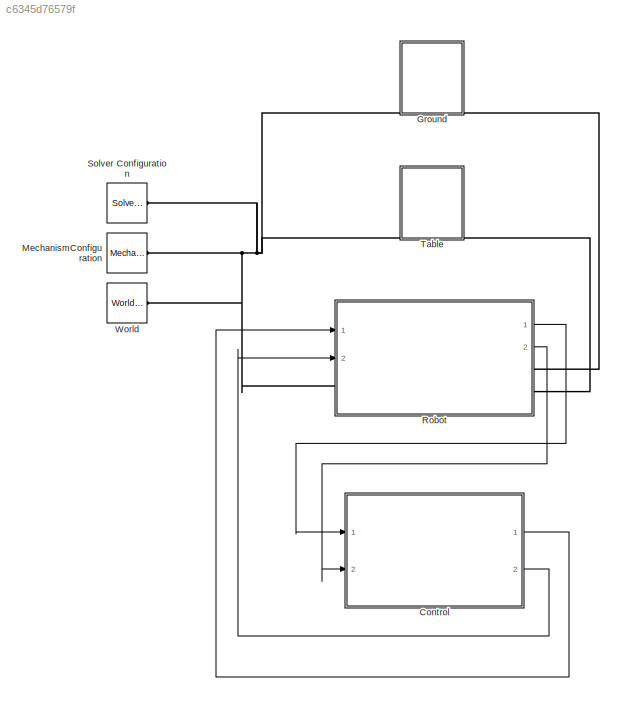
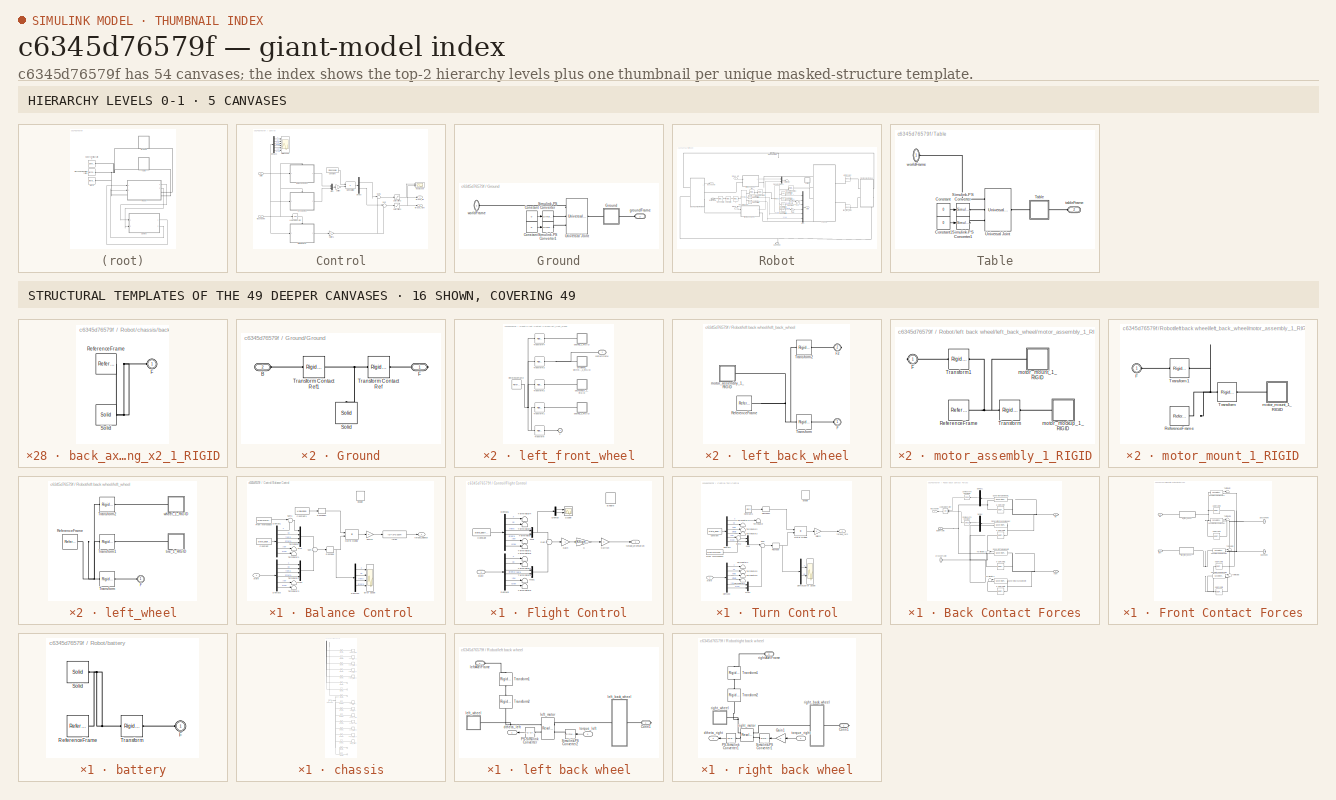
[diagram: thumbnail index - top-2 hierarchy levels (5 canvases) + 16 structural-template representatives of the remaining 49 canvases]
MODEL slx_c6345d76579f
KIND model
CONFIG AbsTol = auto
CONFIG FixedStep = auto
CONFIG MaxStep = 0.001
CONFIG MinStep = auto
CONFIG RelTol = 1e-3
CONFIG SampleTimeConstraint = Unconstrained
CONFIG Solver = VariableStepAuto
CONFIG SolverMode = Auto
CONFIG SolverName = VariableStepAuto
CONFIG StartTime = 0.0
CONFIG StopTime = simTime
WORKSPACE source: external: MAT-File  (data not in archive)
BLOCK [SubSystem] Control
  Ports = [2, 2]
  RequestExecContextInheritance = off
  Variant = off
BLOCK [SubSystem] Control/Balance Control
  Ports = [1, 1, 1]
  RequestExecContextInheritance = off
  Variant = off
BLOCK [Constant] Control/Balance Control/Constant
  Value = state_desired
BLOCK [Constant] Control/Balance Control/Constant1
  Value = Kbalance
BLOCK [Demux] Control/Balance Control/Demux1
  DisplayOption = bar
  Outputs = 6
  Ports = [1, 6]
BLOCK [Demux] Control/Balance Control/Demux2
  DisplayOption = bar
  Ports = [1, 4]
BLOCK [Demux] Control/Balance Control/Demux3
  DisplayOption = bar
  Outputs = 6
  Ports = [1, 6]
BLOCK [EnablePort] Control/Balance Control/Enable
  Ports = []
BLOCK [Scope] Control/Balance Control/Error Scope
  NumInputPorts = 4
  Ports = [4]
  ScopeSpecificationString = Simulink.scopes.TimeScopeBlockCfg('CurrentConfiguration', extmgr.ConfigurationSet(extmgr.Configuration('Core','General UI',true),extmgr.Configuration('Core','Source UI',true),extmgr.Configuration('Sources','WiredSimulink',true,'DataLoggingVariableName','ScopeData1'),extmgr.Configuration('Visuals','Time Domain',true,'SerializedDisplays',{struct('MinYLimReal','-1.92688','MaxYLimReal','0.27844','YLab...<+3413ch>
BLOCK [FromWorkspace] Control/Balance Control/From Workspace
  SampleTime = 0
  VariableName = x_des_input
  ZeroCross = on
BLOCK [Product] Control/Balance Control/Matrix Multiply
  InputSameDT = off
  Multiplication = Matrix(*)
  OutDataTypeStr = Inherit: Inherit via internal rule
  Ports = [2, 1]
  RndMeth = Floor
  SaturateOnIntegerOverflow = off
BLOCK [Mux] Control/Balance Control/Mux
  DisplayOption = bar
  Ports = [4, 1]
BLOCK [Mux] Control/Balance Control/Mux1
  DisplayOption = bar
  Ports = [4, 1]
BLOCK [Reshape] Control/Balance Control/Reshape
  OutputDimensionality = Column vector (2-D)
  Ports = [1, 1]
BLOCK [Reshape] Control/Balance Control/Reshape1
  OutputDimensionality = Row vector (2-D)
  Ports = [1, 1]
BLOCK [Sum] Control/Balance Control/Sum
  IconShape = round
  InputSameDT = off
  Inputs = -+
  OutDataTypeStr = Inherit: Inherit via internal rule
  Ports = [2, 1]
  SaturateOnIntegerOverflow = off
BLOCK [Sum] Control/Balance Control/Sum1
  IconShape = round
  InputSameDT = off
  Inputs = |++
  OutDataTypeStr = Inherit: Inherit via internal rule
  Ports = [2, 1]
  SaturateOnIntegerOverflow = off
BLOCK [Gain] Control/Balance Control/Switch
  OutDataTypeStr = Inherit: Inherit via internal rule
  ParamDataTypeStr = Inherit: Inherit via internal rule
  SaturateOnIntegerOverflow = off
BLOCK [Terminator] Control/Balance Control/Terminator
BLOCK [Terminator] Control/Balance Control/Terminator1
BLOCK [Terminator] Control/Balance Control/Terminator2
BLOCK [Terminator] Control/Balance Control/Terminator3
BLOCK [Fcn] Control/Balance Control/f2tao
  Expr = (u)*(3*0.0254)
BLOCK [Inport] Control/Balance Control/state
  IconDisplay = Port number
BLOCK [Outport] Control/Balance Control/torque_balance
  IconDisplay = Port number
  InitialOutput = 0
  OutputWhenDisabled = reset
BLOCK [Constant] Control/Constant
  Value = Ddecouple
BLOCK [Demux] Control/Demux
  DisplayOption = bar
  Outputs = 2
  Ports = [1, 2]
BLOCK [Demux] Control/Demux3
  DisplayOption = bar
  Outputs = 6
  Ports = [1, 6]
BLOCK [SubSystem] Control/Flight Control
  Ports = [1, 1, 1]
  RequestExecContextInheritance = off
  Variant = off
BLOCK [Constant] Control/Flight Control/Constant
  Value = state_desired
BLOCK [Demux] Control/Flight Control/Demux
  DisplayOption = bar
  Outputs = 2
  Ports = [1, 2]
BLOCK [Demux] Control/Flight Control/Demux1
  DisplayOption = bar
  Outputs = 6
  Ports = [1, 6]
BLOCK [Demux] Control/Flight Control/Demux3
  DisplayOption = bar
  Outputs = 6
  Ports = [1, 6]
BLOCK [EnablePort] Control/Flight Control/Enable
  Ports = []
BLOCK [Gain] Control/Flight Control/Gain
  Gain = -1
  OutDataTypeStr = Inherit: Inherit via internal rule
  ParamDataTypeStr = Inherit: Inherit via internal rule
  SaturateOnIntegerOverflow = off
BLOCK [Gain] Control/Flight Control/K
  Gain = [Kflight]
  Multiplication = Matrix(K*u)
  OutDataTypeStr = Inherit: Inherit via internal rule
  ParamDataTypeStr = Inherit: Inherit via internal rule
  SaturateOnIntegerOverflow = off
BLOCK [Mux] Control/Flight Control/Mux
  DisplayOption = bar
  Inputs = 2
  Ports = [2, 1]
BLOCK [Mux] Control/Flight Control/Mux1
  DisplayOption = bar
  Inputs = 2
  Ports = [2, 1]
BLOCK [Scope] Control/Flight Control/Scope
  NumInputPorts = 2
  Ports = [2]
  ScopeSpecificationString = Simulink.scopes.TimeScopeBlockCfg('CurrentConfiguration', extmgr.ConfigurationSet(extmgr.Configuration('Core','General UI',true),extmgr.Configuration('Core','Source UI',true),extmgr.Configuration('Sources','WiredSimulink',true,'DataLoggingVariableName','ScopeData1'),extmgr.Configuration('Visuals','Time Domain',true,'SerializedDisplays',{struct('MinYLimReal','-0.39504','MaxYLimReal','0.03782','YLab...<+1983ch>
BLOCK [Sum] Control/Flight Control/Sum
  IconShape = round
  InputSameDT = off
  Inputs = +-
  OutDataTypeStr = Inherit: Inherit via internal rule
  Ports = [2, 1]
  SaturateOnIntegerOverflow = off
BLOCK [Gain] Control/Flight Control/Switch
  OutDataTypeStr = Inherit: Inherit via internal rule
  ParamDataTypeStr = Inherit: Inherit via internal rule
  SaturateOnIntegerOverflow = off
BLOCK [Terminator] Control/Flight Control/Terminator
BLOCK [Terminator] Control/Flight Control/Terminator1
BLOCK [Terminator] Control/Flight Control/Terminator2
BLOCK [Terminator] Control/Flight Control/Terminator3
BLOCK [Terminator] Control/Flight Control/Terminator4
BLOCK [Terminator] Control/Flight Control/Terminator5
BLOCK [Terminator] Control/Flight Control/Terminator6
BLOCK [Terminator] Control/Flight Control/Terminator7
BLOCK [Inport] Control/Flight Control/state
  IconDisplay = Port number
BLOCK [Outport] Control/Flight Control/torque_orientation
  IconDisplay = Port number
  InitialOutput = 0
  OutputWhenDisabled = reset
BLOCK [Scope] Control/Input Scope
  NumInputPorts = 2
  Ports = [2]
  ScopeSpecificationString = Simulink.scopes.TimeScopeBlockCfg('CurrentConfiguration', extmgr.ConfigurationSet(extmgr.Configuration('Core','General UI',true),extmgr.Configuration('Core','Source UI',true),extmgr.Configuration('Sources','WiredSimulink',true),extmgr.Configuration('Visuals','Time Domain',true,'SerializedDisplays',{struct('MinYLimReal','-0.85798','MaxYLimReal','0.85798','YLabelReal','','MinYLimMag','0.00000','MaxY...<+1982ch>
BLOCK [Logic] Control/Logical Operator
  AllPortsSameDT = off
  Operator = NOT
  OutDataTypeStr = boolean
  Ports = [1, 1]
BLOCK [Product] Control/Matrix Multiply
  InputSameDT = off
  Multiplication = Matrix(*)
  OutDataTypeStr = Inherit: Inherit via internal rule
  Ports = [2, 1]
  RndMeth = Floor
  SaturateOnIntegerOverflow = off
BLOCK [Mux] Control/Mux
  DisplayOption = bar
  Inputs = 2
  Ports = [2, 1]
BLOCK [Saturate] Control/Saturation2
  InputPortMap = u0
  LowerLimit = -motorSaturation
  Ports = [1, 1]
  UpperLimit = motorSaturation
BLOCK [Saturate] Control/Saturation3
  InputPortMap = u0
  LowerLimit = -motorSaturation
  Ports = [1, 1]
  UpperLimit = motorSaturation
BLOCK [Scope] Control/State Scope
  NumInputPorts = 6
  Ports = [6]
  ScopeSpecificationString = Simulink.scopes.TimeScopeBlockCfg('CurrentConfiguration', extmgr.ConfigurationSet(extmgr.Configuration('Core','General UI',true),extmgr.Configuration('Core','Source UI',true),extmgr.Configuration('Sources','WiredSimulink',true,'DataLoggingVariableName','ScopeData1'),extmgr.Configuration('Visuals','Time Domain',true,'SerializedDisplays',{struct('MinYLimReal','-1.00515','MaxYLimReal','9.04631','YLab...<+4849ch>
BLOCK [Sum] Control/Sum
  IconShape = round
  InputSameDT = off
  Inputs = |++
  OutDataTypeStr = Inherit: Inherit via internal rule
  Ports = [2, 1]
  SaturateOnIntegerOverflow = off
BLOCK [Sum] Control/Sum1
  IconShape = round
  InputSameDT = off
  Inputs = |++
  OutDataTypeStr = Inherit: Inherit via internal rule
  Ports = [2, 1]
  SaturateOnIntegerOverflow = off
BLOCK [Gain] Control/Switch
  OutDataTypeStr = Inherit: Inherit via internal rule
  ParamDataTypeStr = Inherit: Inherit via internal rule
  SaturateOnIntegerOverflow = off
BLOCK [Gain] Control/Switch1
  OutDataTypeStr = Inherit: Inherit via internal rule
  ParamDataTypeStr = Inherit: Inherit via internal rule
  SaturateOnIntegerOverflow = off
BLOCK [SubSystem] Control/Turn Control
  Ports = [1, 1, 1]
  RequestExecContextInheritance = off
  Variant = off
BLOCK [Constant] Control/Turn Control/Constant
  Value = state_desired
BLOCK [Constant] Control/Turn Control/Constant1
  Value = Kturn
BLOCK [Demux] Control/Turn Control/Demux1
  DisplayOption = bar
  Outputs = 6
  Ports = [1, 6]
BLOCK [Demux] Control/Turn Control/Demux2
  DisplayOption = bar
  Outputs = 2
  Ports = [1, 2]
BLOCK [Demux] Control/Turn Control/Demux3
  DisplayOption = bar
  Outputs = 6
  Ports = [1, 6]
BLOCK [EnablePort] Control/Turn Control/Enable
  Ports = []
BLOCK [Scope] Control/Turn Control/Error Scope
  NumInputPorts = 2
  Ports = [2]
  ScopeSpecificationString = Simulink.scopes.TimeScopeBlockCfg('CurrentConfiguration', extmgr.ConfigurationSet(extmgr.Configuration('Core','General UI',true),extmgr.Configuration('Core','Source UI',true),extmgr.Configuration('Sources','WiredSimulink',true,'DataLoggingVariableName','ScopeData1'),extmgr.Configuration('Visuals','Time Domain',true,'SerializedDisplays',{struct('MinYLimReal','-0.11451','MaxYLimReal','1.03061','YLab...<+4723ch>
BLOCK [FromWorkspace] Control/Turn Control/From Workspace1
  SampleTime = 0
  VariableName = yaw_des_input
  ZeroCross = on
BLOCK [Product] Control/Turn Control/Matrix Multiply
  InputSameDT = off
  Multiplication = Matrix(*)
  OutDataTypeStr = Inherit: Inherit via internal rule
  Ports = [2, 1]
  RndMeth = Floor
  SaturateOnIntegerOverflow = off
BLOCK [Mux] Control/Turn Control/Mux
  DisplayOption = bar
  Inputs = 2
  Ports = [2, 1]
BLOCK [Mux] Control/Turn Control/Mux1
  DisplayOption = bar
  Inputs = 2
  Ports = [2, 1]
BLOCK [Reshape] Control/Turn Control/Reshape
  OutputDimensionality = Column vector (2-D)
  Ports = [1, 1]
BLOCK [Reshape] Control/Turn Control/Reshape1
  OutputDimensionality = Row vector (2-D)
  Ports = [1, 1]
BLOCK [Sum] Control/Turn Control/Sum
  IconShape = round
  InputSameDT = off
  Inputs = -+
  OutDataTypeStr = Inherit: Inherit via internal rule
  Ports = [2, 1]
  SaturateOnIntegerOverflow = off
BLOCK [Sum] Control/Turn Control/Sum2
  IconShape = round
  InputSameDT = off
  Inputs = |++
  OutDataTypeStr = Inherit: Inherit via internal rule
  Ports = [2, 1]
  SaturateOnIntegerOverflow = off
BLOCK [Gain] Control/Turn Control/Switch
  OutDataTypeStr = Inherit: Inherit via internal rule
  ParamDataTypeStr = Inherit: Inherit via internal rule
  SaturateOnIntegerOverflow = off
BLOCK [Terminator] Control/Turn Control/Terminator
BLOCK [Terminator] Control/Turn Control/Terminator1
BLOCK [Terminator] Control/Turn Control/Terminator2
BLOCK [Terminator] Control/Turn Control/Terminator3
BLOCK [Terminator] Control/Turn Control/Terminator4
BLOCK [Terminator] Control/Turn Control/Terminator5
BLOCK [Terminator] Control/Turn Control/Terminator6
BLOCK [Terminator] Control/Turn Control/Terminator7
BLOCK [Inport] Control/Turn Control/state
  IconDisplay = Port number
BLOCK [Outport] Control/Turn Control/torque_turn
  IconDisplay = Port number
  InitialOutput = 0
  OutputWhenDisabled = reset
BLOCK [Inport] Control/state
  IconDisplay = Port number
BLOCK [Outport] Control/torque_left
  IconDisplay = Port number
BLOCK [Outport] Control/torque_right
  IconDisplay = Port number
  Port = 2
BLOCK [Inport] Control/touchdown
  IconDisplay = Port number
  Port = 2
BLOCK [SubSystem] Ground
  Ports = [0, 0, 0, 0, 0, 2]
  RequestExecContextInheritance = off
  Variant = off
BLOCK [Constant] Ground/Constant
  Value = 0
BLOCK [Constant] Ground/Constant1
  Value = 0
BLOCK [SubSystem] Ground/Ground
  Ports = [0, 0, 0, 0, 0, 1, 1]
  RequestExecContextInheritance = off
  Tag = CustomStyle
  Variant = off
BLOCK [PMIOPort] Ground/Ground/B
  Port = 2
  Side = Left
BLOCK [PMIOPort] Ground/Ground/F
  Port = 1
  Side = Right
BLOCK [Reference] Ground/Ground/Solid  REF=sm_lib/Body Elements/Solid
  Ports = [0, 0, 0, 0, 0, 0, 1]
  SourceBlock = sm_lib/Body Elements/Solid
  SourceType = Solid
BLOCK [Reference] Ground/Ground/Transform Contact Ref  REF=sm_lib/Frames and
Transforms/Rigid
Transform
  Ports = [0, 0, 0, 0, 0, 1, 1]
  SourceBlock = sm_lib/Frames and\nTransforms/Rigid\nTransform
  SourceType = Rigid\nTransform
BLOCK [Reference] Ground/Ground/Transform Contact Ref1  REF=sm_lib/Frames and
Transforms/Rigid
Transform
  Ports = [0, 0, 0, 0, 0, 1, 1]
  SourceBlock = sm_lib/Frames and\nTransforms/Rigid\nTransform
  SourceType = Rigid\nTransform
BLOCK [Reference] Ground/Simulink-PS Converter  REF=nesl_utility/Simulink-PS
Converter
  Ports = [1, 0, 0, 0, 0, 0, 1]
  SourceBlock = nesl_utility/Simulink-PS\nConverter
  SourceType = Simulink-PS\nConverter
BLOCK [Reference] Ground/Simulink-PS Converter1  REF=nesl_utility/Simulink-PS
Converter
  Ports = [1, 0, 0, 0, 0, 0, 1]
  SourceBlock = nesl_utility/Simulink-PS\nConverter
  SourceType = Simulink-PS\nConverter
BLOCK [Reference] Ground/Universal Joint  REF=sm_lib/Joints/Universal
Joint
  Ports = [0, 0, 0, 0, 0, 3, 1]
  SourceBlock = sm_lib/Joints/Universal\nJoint
  SourceType = Universal\nJoint
BLOCK [PMIOPort] Ground/groundFrame
  Port = 2
  Side = Left
BLOCK [PMIOPort] Ground/worldFrame
  Port = 1
  Side = Left
BLOCK [Reference] MechanismConfiguration  REF=sm_lib/Utilities/Mechanism
Configuration
  Ports = [0, 0, 0, 0, 0, 0, 1]
  SourceBlock = sm_lib/Utilities/Mechanism\nConfiguration
  SourceType = Mechanism\nConfiguration
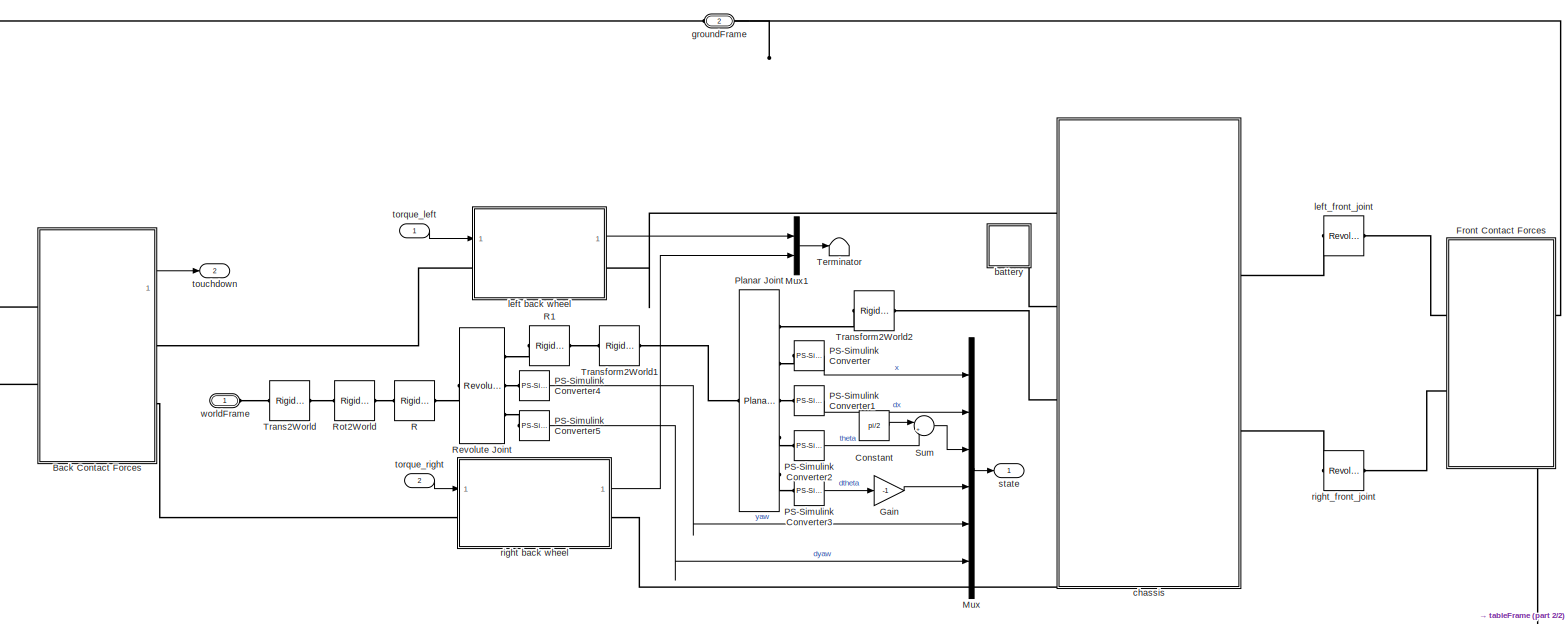
[diagram: Robot - part 1/2, most of the canvas]
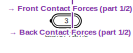
[diagram: Robot - part 2/2, bottom center region]
BLOCK [SubSystem] Robot
  Ports = [2, 2, 0, 0, 0, 1, 2]
  RequestExecContextInheritance = off
  Variant = off
BLOCK [SubSystem] Robot/Back Contact Forces
  Ports = [0, 1, 0, 0, 0, 2, 2]
  RequestExecContextInheritance = off
  Variant = off
BLOCK [Reference] Robot/Back Contact Forces/6-DOF Joint  REF=sm_lib/Joints/6-DOF Joint
  Ports = [0, 0, 0, 0, 0, 1, 1]
  SourceBlock = sm_lib/Joints/6-DOF Joint
  SourceType = 6-DOF Joint
BLOCK [Reference] Robot/Back Contact Forces/6-DOF Joint1  REF=sm_lib/Joints/6-DOF Joint
  Ports = [0, 0, 0, 0, 0, 1, 1]
  SourceBlock = sm_lib/Joints/6-DOF Joint
  SourceType = 6-DOF Joint
BLOCK [Reference] Robot/Back Contact Forces/6-DOF Joint5  REF=sm_lib/Joints/6-DOF Joint
  Ports = [0, 0, 0, 0, 0, 1, 1]
  SourceBlock = sm_lib/Joints/6-DOF Joint
  SourceType = 6-DOF Joint
BLOCK [Reference] Robot/Back Contact Forces/6-DOF Joint6  REF=sm_lib/Joints/6-DOF Joint
  Ports = [0, 0, 0, 0, 0, 1, 1]
  SourceBlock = sm_lib/Joints/6-DOF Joint
  SourceType = 6-DOF Joint
BLOCK [Reference] Robot/Back Contact Forces/Compare To Constant  REF=simulink/Logic and Bit
Operations/Compare
To Constant
  Ports = [1, 1]
  SourceBlock = simulink/Logic and Bit\nOperations/Compare\nTo Constant
  SourceType = Compare To Constant
BLOCK [Reference] Robot/Back Contact Forces/Compare To Constant1  REF=simulink/Logic and Bit
Operations/Compare
To Constant
  Ports = [1, 1]
  SourceBlock = simulink/Logic and Bit\nOperations/Compare\nTo Constant
  SourceType = Compare To Constant
BLOCK [Demux] Robot/Back Contact Forces/Demux
  DisplayOption = bar
  Outputs = 8
  Ports = [1, 8]
BLOCK [Demux] Robot/Back Contact Forces/Demux1
  DisplayOption = bar
  Outputs = 8
  Ports = [1, 8]
BLOCK [Logic] Robot/Back Contact Forces/Logical Operator
  AllPortsSameDT = off
  Operator = OR
  OutDataTypeStr = boolean
  Ports = [2, 1]
BLOCK [Reference] Robot/Back Contact Forces/Sphere to Ground WheelL2  REF=Contact_Forces_Lib/3D/Sphere to Plane Force
  Ports = [0, 1, 0, 0, 0, 1, 1]
  SourceBlock = Contact_Forces_Lib/3D/Sphere to Plane Force
  SourceType = Sphere to Plane Force
BLOCK [Reference] Robot/Back Contact Forces/Sphere to Ground WheelR  REF=Contact_Forces_Lib/3D/Sphere to Plane Force
  Ports = [0, 1, 0, 0, 0, 1, 1]
  SourceBlock = Contact_Forces_Lib/3D/Sphere to Plane Force
  SourceType = Sphere to Plane Force
BLOCK [Reference] Robot/Back Contact Forces/Sphere to Table WheelL  REF=Contact_Forces_Lib/3D/Sphere to Plane Force
  Ports = [0, 1, 0, 0, 0, 1, 1]
  SourceBlock = Contact_Forces_Lib/3D/Sphere to Plane Force
  SourceType = Sphere to Plane Force
BLOCK [Reference] Robot/Back Contact Forces/Sphere to Table WheelR  REF=Contact_Forces_Lib/3D/Sphere to Plane Force
  Ports = [0, 1, 0, 0, 0, 1, 1]
  SourceBlock = Contact_Forces_Lib/3D/Sphere to Plane Force
  SourceType = Sphere to Plane Force
BLOCK [Terminator] Robot/Back Contact Forces/Terminator2
BLOCK [Terminator] Robot/Back Contact Forces/Terminator3
BLOCK [PMIOPort] Robot/Back Contact Forces/groundFrame
  Port = 2
  Side = Left
BLOCK [PMIOPort] Robot/Back Contact Forces/left
  Port = 1
  Side = Right
BLOCK [PMIOPort] Robot/Back Contact Forces/right
  Port = 3
  Side = Right
BLOCK [PMIOPort] Robot/Back Contact Forces/tableFrame
  Port = 4
  Side = Left
BLOCK [Outport] Robot/Back Contact Forces/touchdown
  IconDisplay = Port number
BLOCK [Constant] Robot/Constant
  Value = pi/2
BLOCK [SubSystem] Robot/Front Contact Forces
  Ports = [0, 0, 0, 0, 0, 2, 2]
  RequestExecContextInheritance = off
  Variant = off
BLOCK [Reference] Robot/Front Contact Forces/6-DOF Joint2  REF=sm_lib/Joints/6-DOF Joint
  Ports = [0, 0, 0, 0, 0, 1, 1]
  SourceBlock = sm_lib/Joints/6-DOF Joint
  SourceType = 6-DOF Joint
BLOCK [Reference] Robot/Front Contact Forces/6-DOF Joint3  REF=sm_lib/Joints/6-DOF Joint
  Ports = [0, 0, 0, 0, 0, 1, 1]
  SourceBlock = sm_lib/Joints/6-DOF Joint
  SourceType = 6-DOF Joint
BLOCK [Reference] Robot/Front Contact Forces/6-DOF Joint7  REF=sm_lib/Joints/6-DOF Joint
  Ports = [0, 0, 0, 0, 0, 1, 1]
  SourceBlock = sm_lib/Joints/6-DOF Joint
  SourceType = 6-DOF Joint
BLOCK [Reference] Robot/Front Contact Forces/6-DOF Joint8  REF=sm_lib/Joints/6-DOF Joint
  Ports = [0, 0, 0, 0, 0, 1, 1]
  SourceBlock = sm_lib/Joints/6-DOF Joint
  SourceType = 6-DOF Joint
BLOCK [Reference] Robot/Front Contact Forces/Sphere to Ground WheelL1  REF=Contact_Forces_Lib/3D/Sphere to Plane Force
  Ports = [0, 1, 0, 0, 0, 1, 1]
  SourceBlock = Contact_Forces_Lib/3D/Sphere to Plane Force
  SourceType = Sphere to Plane Force
BLOCK [Reference] Robot/Front Contact Forces/Sphere to Table WheelL1  REF=Contact_Forces_Lib/3D/Sphere to Plane Force
  Ports = [0, 1, 0, 0, 0, 1, 1]
  SourceBlock = Contact_Forces_Lib/3D/Sphere to Plane Force
  SourceType = Sphere to Plane Force
BLOCK [Reference] Robot/Front Contact Forces/Sphere to Table WheelR1  REF=Contact_Forces_Lib/3D/Sphere to Plane Force
  Ports = [0, 1, 0, 0, 0, 1, 1]
  SourceBlock = Contact_Forces_Lib/3D/Sphere to Plane Force
  SourceType = Sphere to Plane Force
BLOCK [Reference] Robot/Front Contact Forces/Sphere to Table WheelR2  REF=Contact_Forces_Lib/3D/Sphere to Plane Force
  Ports = [0, 1, 0, 0, 0, 1, 1]
  SourceBlock = Contact_Forces_Lib/3D/Sphere to Plane Force
  SourceType = Sphere to Plane Force
BLOCK [Terminator] Robot/Front Contact Forces/Terminator
BLOCK [Terminator] Robot/Front Contact Forces/Terminator1
BLOCK [Terminator] Robot/Front Contact Forces/Terminator2
BLOCK [Terminator] Robot/Front Contact Forces/Terminator3
BLOCK [PMIOPort] Robot/Front Contact Forces/groundFrame
  Port = 2
  Side = Right
BLOCK [PMIOPort] Robot/Front Contact Forces/left
  Port = 1
  Side = Left
BLOCK [SubSystem] Robot/Front Contact Forces/left_front_wheel
  Ports = [0, 0, 0, 0, 0, 1, 1]
  RequestExecContextInheritance = off
  Variant = off
BLOCK [PMIOPort] Robot/Front Contact Forces/left_front_wheel/F
  Port = 1
  Side = Left
BLOCK [Reference] Robot/Front Contact Forces/left_front_wheel/ReferenceFrame  REF=sm_lib/Frames and
Transforms/Reference
Frame
  Ports = [0, 0, 0, 0, 0, 0, 1]
  SourceBlock = sm_lib/Frames and\nTransforms/Reference\nFrame
  SourceType = Reference\nFrame
BLOCK [Reference] Robot/Front Contact Forces/left_front_wheel/Transform  REF=sm_lib/Frames and
Transforms/Rigid
Transform
  Ports = [0, 0, 0, 0, 0, 1, 1]
  SourceBlock = sm_lib/Frames and\nTransforms/Rigid\nTransform
  SourceType = Rigid\nTransform
BLOCK [Reference] Robot/Front Contact Forces/left_front_wheel/Transform1  REF=sm_lib/Frames and
Transforms/Rigid
Transform
  Ports = [0, 0, 0, 0, 0, 1, 1]
  SourceBlock = sm_lib/Frames and\nTransforms/Rigid\nTransform
  SourceType = Rigid\nTransform
BLOCK [Reference] Robot/Front Contact Forces/left_front_wheel/Transform2  REF=sm_lib/Frames and
Transforms/Rigid
Transform
  Ports = [0, 0, 0, 0, 0, 1, 1]
  SourceBlock = sm_lib/Frames and\nTransforms/Rigid\nTransform
  SourceType = Rigid\nTransform
BLOCK [Reference] Robot/Front Contact Forces/left_front_wheel/Transform3  REF=sm_lib/Frames and
Transforms/Rigid
Transform
  Ports = [0, 0, 0, 0, 0, 1, 1]
  SourceBlock = sm_lib/Frames and\nTransforms/Rigid\nTransform
  SourceType = Rigid\nTransform
BLOCK [Reference] Robot/Front Contact Forces/left_front_wheel/Transform4  REF=sm_lib/Frames and
Transforms/Rigid
Transform
  Ports = [0, 0, 0, 0, 0, 1, 1]
  SourceBlock = sm_lib/Frames and\nTransforms/Rigid\nTransform
  SourceType = Rigid\nTransform
BLOCK [SubSystem] Robot/Front Contact Forces/left_front_wheel/backaxelcut_1_RIGID
  Ports = [0, 0, 0, 0, 0, 1]
  RequestExecContextInheritance = off
  Variant = off
BLOCK [PMIOPort] Robot/Front Contact Forces/left_front_wheel/backaxelcut_1_RIGID/F
  Port = 1
  Side = Left
BLOCK [Reference] Robot/Front Contact Forces/left_front_wheel/backaxelcut_1_RIGID/ReferenceFrame  REF=sm_lib/Frames and
Transforms/Reference
Frame
  Ports = [0, 0, 0, 0, 0, 0, 1]
  SourceBlock = sm_lib/Frames and\nTransforms/Reference\nFrame
  SourceType = Reference\nFrame
BLOCK [Reference] Robot/Front Contact Forces/left_front_wheel/backaxelcut_1_RIGID/Solid  REF=sm_lib/Body Elements/Solid
  Ports = [0, 0, 0, 0, 0, 0, 1]
  SourceBlock = sm_lib/Body Elements/Solid
  SourceType = Solid
BLOCK [SubSystem] Robot/Front Contact Forces/left_front_wheel/bearing_1_RIGID
  Ports = [0, 0, 0, 0, 0, 1]
  RequestExecContextInheritance = off
  Variant = off
BLOCK [PMIOPort] Robot/Front Contact Forces/left_front_wheel/bearing_1_RIGID/F
  Port = 1
  Side = Left
BLOCK [Reference] Robot/Front Contact Forces/left_front_wheel/bearing_1_RIGID/ReferenceFrame  REF=sm_lib/Frames and
Transforms/Reference
Frame
  Ports = [0, 0, 0, 0, 0, 0, 1]
  SourceBlock = sm_lib/Frames and\nTransforms/Reference\nFrame
  SourceType = Reference\nFrame
BLOCK [Reference] Robot/Front Contact Forces/left_front_wheel/bearing_1_RIGID/Solid  REF=sm_lib/Body Elements/Solid
  Ports = [0, 0, 0, 0, 0, 0, 1]
  SourceBlock = sm_lib/Body Elements/Solid
  SourceType = Solid
BLOCK [SubSystem] Robot/Front Contact Forces/left_front_wheel/bearing_2_RIGID
  Ports = [0, 0, 0, 0, 0, 1]
  RequestExecContextInheritance = off
  Variant = off
BLOCK [PMIOPort] Robot/Front Contact Forces/left_front_wheel/bearing_2_RIGID/F
  Port = 1
  Side = Left
BLOCK [Reference] Robot/Front Contact Forces/left_front_wheel/bearing_2_RIGID/ReferenceFrame  REF=sm_lib/Frames and
Transforms/Reference
Frame
  Ports = [0, 0, 0, 0, 0, 0, 1]
  SourceBlock = sm_lib/Frames and\nTransforms/Reference\nFrame
  SourceType = Reference\nFrame
BLOCK [Reference] Robot/Front Contact Forces/left_front_wheel/bearing_2_RIGID/Solid  REF=sm_lib/Body Elements/Solid
  Ports = [0, 0, 0, 0, 0, 0, 1]
  SourceBlock = sm_lib/Body Elements/Solid
  SourceType = Solid
BLOCK [PMIOPort] Robot/Front Contact Forces/left_front_wheel/contactFrame
  Port = 2
  Side = Right
BLOCK [SubSystem] Robot/Front Contact Forces/left_front_wheel/omniwheel_simmechanics_2_RIGID
  Ports = [0, 0, 0, 0, 0, 1]
  RequestExecContextInheritance = off
  Variant = off
BLOCK [PMIOPort] Robot/Front Contact Forces/left_front_wheel/omniwheel_simmechanics_2_RIGID/F
  Port = 1
  Side = Left
BLOCK [Reference] Robot/Front Contact Forces/left_front_wheel/omniwheel_simmechanics_2_RIGID/ReferenceFrame  REF=sm_lib/Frames and
Transforms/Reference
Frame
  Ports = [0, 0, 0, 0, 0, 0, 1]
  SourceBlock = sm_lib/Frames and\nTransforms/Reference\nFrame
  SourceType = Reference\nFrame
BLOCK [Reference] Robot/Front Contact Forces/left_front_wheel/omniwheel_simmechanics_2_RIGID/Solid  REF=sm_lib/Body Elements/Solid
  Ports = [0, 0, 0, 0, 0, 0, 1]
  SourceBlock = sm_lib/Body Elements/Solid
  SourceType = Solid
BLOCK [PMIOPort] Robot/Front Contact Forces/right
  Port = 3
  Side = Left
BLOCK [SubSystem] Robot/Front Contact Forces/right_front_wheel
  Ports = [0, 0, 0, 0, 0, 1, 1]
  RequestExecContextInheritance = off
  Variant = off
BLOCK [PMIOPort] Robot/Front Contact Forces/right_front_wheel/F
  Port = 1
  Side = Left
BLOCK [Reference] Robot/Front Contact Forces/right_front_wheel/ReferenceFrame  REF=sm_lib/Frames and
Transforms/Reference
Frame
  Ports = [0, 0, 0, 0, 0, 0, 1]
  SourceBlock = sm_lib/Frames and\nTransforms/Reference\nFrame
  SourceType = Reference\nFrame
BLOCK [Reference] Robot/Front Contact Forces/right_front_wheel/Transform  REF=sm_lib/Frames and
Transforms/Rigid
Transform
  Ports = [0, 0, 0, 0, 0, 1, 1]
  SourceBlock = sm_lib/Frames and\nTransforms/Rigid\nTransform
  SourceType = Rigid\nTransform
BLOCK [Reference] Robot/Front Contact Forces/right_front_wheel/Transform1  REF=sm_lib/Frames and
Transforms/Rigid
Transform
  Ports = [0, 0, 0, 0, 0, 1, 1]
  SourceBlock = sm_lib/Frames and\nTransforms/Rigid\nTransform
  SourceType = Rigid\nTransform
BLOCK [Reference] Robot/Front Contact Forces/right_front_wheel/Transform2  REF=sm_lib/Frames and
Transforms/Rigid
Transform
  Ports = [0, 0, 0, 0, 0, 1, 1]
  SourceBlock = sm_lib/Frames and\nTransforms/Rigid\nTransform
  SourceType = Rigid\nTransform
BLOCK [Reference] Robot/Front Contact Forces/right_front_wheel/Transform3  REF=sm_lib/Frames and
Transforms/Rigid
Transform
  Ports = [0, 0, 0, 0, 0, 1, 1]
  SourceBlock = sm_lib/Frames and\nTransforms/Rigid\nTransform
  SourceType = Rigid\nTransform
BLOCK [Reference] Robot/Front Contact Forces/right_front_wheel/Transform4  REF=sm_lib/Frames and
Transforms/Rigid
Transform
  Ports = [0, 0, 0, 0, 0, 1, 1]
  SourceBlock = sm_lib/Frames and\nTransforms/Rigid\nTransform
  SourceType = Rigid\nTransform
BLOCK [SubSystem] Robot/Front Contact Forces/right_front_wheel/backaxelcut_1_RIGID
  Ports = [0, 0, 0, 0, 0, 1]
  RequestExecContextInheritance = off
  Variant = off
BLOCK [PMIOPort] Robot/Front Contact Forces/right_front_wheel/backaxelcut_1_RIGID/F
  Port = 1
  Side = Left
BLOCK [Reference] Robot/Front Contact Forces/right_front_wheel/backaxelcut_1_RIGID/ReferenceFrame  REF=sm_lib/Frames and
Transforms/Reference
Frame
  Ports = [0, 0, 0, 0, 0, 0, 1]
  SourceBlock = sm_lib/Frames and\nTransforms/Reference\nFrame
  SourceType = Reference\nFrame
BLOCK [Reference] Robot/Front Contact Forces/right_front_wheel/backaxelcut_1_RIGID/Solid  REF=sm_lib/Body Elements/Solid
  Ports = [0, 0, 0, 0, 0, 0, 1]
  SourceBlock = sm_lib/Body Elements/Solid
  SourceType = Solid
BLOCK [SubSystem] Robot/Front Contact Forces/right_front_wheel/bearing_1_RIGID
  Ports = [0, 0, 0, 0, 0, 1]
  RequestExecContextInheritance = off
  Variant = off
BLOCK [PMIOPort] Robot/Front Contact Forces/right_front_wheel/bearing_1_RIGID/F
  Port = 1
  Side = Left
BLOCK [Reference] Robot/Front Contact Forces/right_front_wheel/bearing_1_RIGID/ReferenceFrame  REF=sm_lib/Frames and
Transforms/Reference
Frame
  Ports = [0, 0, 0, 0, 0, 0, 1]
  SourceBlock = sm_lib/Frames and\nTransforms/Reference\nFrame
  SourceType = Reference\nFrame
BLOCK [Reference] Robot/Front Contact Forces/right_front_wheel/bearing_1_RIGID/Solid  REF=sm_lib/Body Elements/Solid
  Ports = [0, 0, 0, 0, 0, 0, 1]
  SourceBlock = sm_lib/Body Elements/Solid
  SourceType = Solid
BLOCK [SubSystem] Robot/Front Contact Forces/right_front_wheel/bearing_2_RIGID
  Ports = [0, 0, 0, 0, 0, 1]
  RequestExecContextInheritance = off
  Variant = off
BLOCK [PMIOPort] Robot/Front Contact Forces/right_front_wheel/bearing_2_RIGID/F
  Port = 1
  Side = Left
BLOCK [Reference] Robot/Front Contact Forces/right_front_wheel/bearing_2_RIGID/ReferenceFrame  REF=sm_lib/Frames and
Transforms/Reference
Frame
  Ports = [0, 0, 0, 0, 0, 0, 1]
  SourceBlock = sm_lib/Frames and\nTransforms/Reference\nFrame
  SourceType = Reference\nFrame
BLOCK [Reference] Robot/Front Contact Forces/right_front_wheel/bearing_2_RIGID/Solid  REF=sm_lib/Body Elements/Solid
  Ports = [0, 0, 0, 0, 0, 0, 1]
  SourceBlock = sm_lib/Body Elements/Solid
  SourceType = Solid
BLOCK [PMIOPort] Robot/Front Contact Forces/right_front_wheel/contactFrame
  Port = 2
  Side = Right
BLOCK [SubSystem] Robot/Front Contact Forces/right_front_wheel/omniwheel_simmechanics_2_RIGID
  Ports = [0, 0, 0, 0, 0, 1]
  RequestExecContextInheritance = off
  Variant = off
BLOCK [PMIOPort] Robot/Front Contact Forces/right_front_wheel/omniwheel_simmechanics_2_RIGID/F
  Port = 1
  Side = Left
BLOCK [Reference] Robot/Front Contact Forces/right_front_wheel/omniwheel_simmechanics_2_RIGID/ReferenceFrame  REF=sm_lib/Frames and
Transforms/Reference
Frame
  Ports = [0, 0, 0, 0, 0, 0, 1]
  SourceBlock = sm_lib/Frames and\nTransforms/Reference\nFrame
  SourceType = Reference\nFrame
BLOCK [Reference] Robot/Front Contact Forces/right_front_wheel/omniwheel_simmechanics_2_RIGID/Solid  REF=sm_lib/Body Elements/Solid
  Ports = [0, 0, 0, 0, 0, 0, 1]
  SourceBlock = sm_lib/Body Elements/Solid
  SourceType = Solid
BLOCK [PMIOPort] Robot/Front Contact Forces/tableFrame
  Port = 4
  Side = Right
BLOCK [Gain] Robot/Gain
  Gain = -1
  OutDataTypeStr = Inherit: Inherit via internal rule
  ParamDataTypeStr = Inherit: Inherit via internal rule
  SaturateOnIntegerOverflow = off
BLOCK [Mux] Robot/Mux
  DisplayOption = bar
  Inputs = 6
  Ports = [6, 1]
BLOCK [Mux] Robot/Mux1
  DisplayOption = bar
  Inputs = 2
  Ports = [2, 1]
BLOCK [Reference] Robot/PS-Simulink Converter  REF=nesl_utility/PS-Simulink
Converter
  Ports = [0, 1, 0, 0, 0, 1]
  SourceBlock = nesl_utility/PS-Simulink\nConverter
  SourceType = PS-Simulink\nConverter
BLOCK [Reference] Robot/PS-Simulink Converter1  REF=nesl_utility/PS-Simulink
Converter
  Ports = [0, 1, 0, 0, 0, 1]
  SourceBlock = nesl_utility/PS-Simulink\nConverter
  SourceType = PS-Simulink\nConverter
BLOCK [Reference] Robot/PS-Simulink Converter2  REF=nesl_utility/PS-Simulink
Converter
  Ports = [0, 1, 0, 0, 0, 1]
  SourceBlock = nesl_utility/PS-Simulink\nConverter
  SourceType = PS-Simulink\nConverter
BLOCK [Reference] Robot/PS-Simulink Converter3  REF=nesl_utility/PS-Simulink
Converter
  Ports = [0, 1, 0, 0, 0, 1]
  SourceBlock = nesl_utility/PS-Simulink\nConverter
  SourceType = PS-Simulink\nConverter
BLOCK [Reference] Robot/PS-Simulink Converter4  REF=nesl_utility/PS-Simulink
Converter
  Ports = [0, 1, 0, 0, 0, 1]
  SourceBlock = nesl_utility/PS-Simulink\nConverter
  SourceType = PS-Simulink\nConverter
BLOCK [Reference] Robot/PS-Simulink Converter5  REF=nesl_utility/PS-Simulink
Converter
  Ports = [0, 1, 0, 0, 0, 1]
  SourceBlock = nesl_utility/PS-Simulink\nConverter
  SourceType = PS-Simulink\nConverter
BLOCK [Reference] Robot/Planar Joint  REF=sm_lib/Joints/Planar Joint
  Ports = [0, 0, 0, 0, 0, 1, 5]
  SourceBlock = sm_lib/Joints/Planar Joint
  SourceType = Planar Joint
BLOCK [Reference] Robot/R  REF=sm_lib/Frames and
Transforms/Rigid
Transform
  Ports = [0, 0, 0, 0, 0, 1, 1]
  SourceBlock = sm_lib/Frames and\nTransforms/Rigid\nTransform
  SourceType = Rigid\nTransform
BLOCK [Reference] Robot/R1  REF=sm_lib/Frames and
Transforms/Rigid
Transform
  Ports = [0, 0, 0, 0, 0, 1, 1]
  SourceBlock = sm_lib/Frames and\nTransforms/Rigid\nTransform
  SourceType = Rigid\nTransform
BLOCK [Reference] Robot/Revolute Joint  REF=sm_lib/Joints/Revolute Joint
  Ports = [0, 0, 0, 0, 0, 1, 3]
  SourceBlock = sm_lib/Joints/Revolute Joint
  SourceType = Revolute Joint
BLOCK [Reference] Robot/Rot2World  REF=sm_lib/Frames and
Transforms/Rigid
Transform
  Ports = [0, 0, 0, 0, 0, 1, 1]
  SourceBlock = sm_lib/Frames and\nTransforms/Rigid\nTransform
  SourceType = Rigid\nTransform
BLOCK [Sum] Robot/Sum
  IconShape = round
  InputSameDT = off
  Inputs = |+-
  OutDataTypeStr = Inherit: Inherit via internal rule
  Ports = [2, 1]
  SaturateOnIntegerOverflow = off
BLOCK [Terminator] Robot/Terminator
BLOCK [Reference] Robot/Trans2World  REF=sm_lib/Frames and
Transforms/Rigid
Transform
  Ports = [0, 0, 0, 0, 0, 1, 1]
  SourceBlock = sm_lib/Frames and\nTransforms/Rigid\nTransform
  SourceType = Rigid\nTransform
BLOCK [Reference] Robot/Transform2World1  REF=sm_lib/Frames and
Transforms/Rigid
Transform
  Ports = [0, 0, 0, 0, 0, 1, 1]
  SourceBlock = sm_lib/Frames and\nTransforms/Rigid\nTransform
  SourceType = Rigid\nTransform
BLOCK [Reference] Robot/Transform2World2  REF=sm_lib/Frames and
Transforms/Rigid
Transform
  Ports = [0, 0, 0, 0, 0, 1, 1]
  SourceBlock = sm_lib/Frames and\nTransforms/Rigid\nTransform
  SourceType = Rigid\nTransform
BLOCK [SubSystem] Robot/battery
  Ports = [0, 0, 0, 0, 0, 1]
  RequestExecContextInheritance = off
  Variant = off
BLOCK [PMIOPort] Robot/battery/F
  Port = 1
  Side = Left
BLOCK [Reference] Robot/battery/ReferenceFrame  REF=sm_lib/Frames and
Transforms/Reference
Frame
  Ports = [0, 0, 0, 0, 0, 0, 1]
  SourceBlock = sm_lib/Frames and\nTransforms/Reference\nFrame
  SourceType = Reference\nFrame
BLOCK [Reference] Robot/battery/Solid  REF=sm_lib/Body Elements/Solid
  Ports = [0, 0, 0, 0, 0, 0, 1]
  SourceBlock = sm_lib/Body Elements/Solid
  SourceType = Solid
BLOCK [Reference] Robot/battery/Transform  REF=sm_lib/Frames and
Transforms/Rigid
Transform
  Ports = [0, 0, 0, 0, 0, 1, 1]
  SourceBlock = sm_lib/Frames and\nTransforms/Rigid\nTransform
  SourceType = Rigid\nTransform
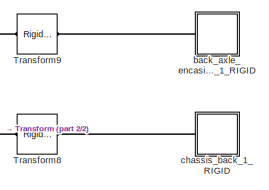
[diagram: Robot/chassis - part 1/2, top right region]
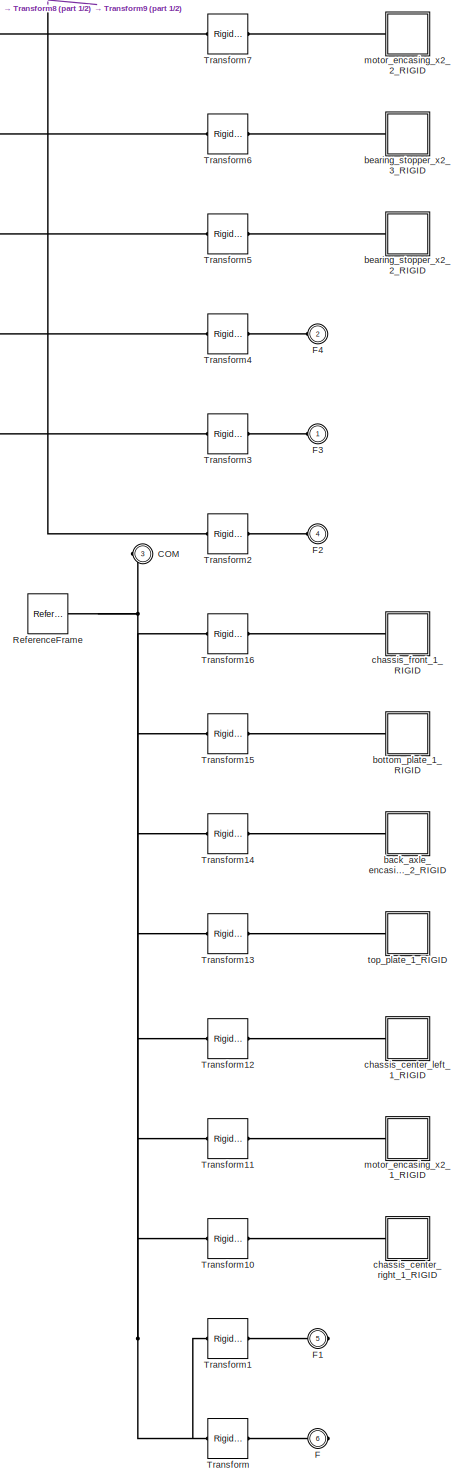
[diagram: Robot/chassis - part 2/2, most of the canvas]
BLOCK [SubSystem] Robot/chassis
  Ports = [0, 0, 0, 0, 0, 4, 2]
  RequestExecContextInheritance = off
  Variant = off
BLOCK [PMIOPort] Robot/chassis/COM
  Port = 3
  Side = Left
BLOCK [PMIOPort] Robot/chassis/F
  Port = 6
  Side = Right
BLOCK [PMIOPort] Robot/chassis/F1
  Port = 5
  Side = Right
BLOCK [PMIOPort] Robot/chassis/F2
  Port = 4
  Side = Left
BLOCK [PMIOPort] Robot/chassis/F3
  Port = 1
  Side = Left
BLOCK [PMIOPort] Robot/chassis/F4
  Port = 2
  Side = Left
BLOCK [Reference] Robot/chassis/ReferenceFrame  REF=sm_lib/Frames and
Transforms/Reference
Frame
  Ports = [0, 0, 0, 0, 0, 0, 1]
  SourceBlock = sm_lib/Frames and\nTransforms/Reference\nFrame
  SourceType = Reference\nFrame
BLOCK [Reference] Robot/chassis/Transform  REF=sm_lib/Frames and
Transforms/Rigid
Transform
  Ports = [0, 0, 0, 0, 0, 1, 1]
  SourceBlock = sm_lib/Frames and\nTransforms/Rigid\nTransform
  SourceType = Rigid\nTransform
BLOCK [Reference] Robot/chassis/Transform1  REF=sm_lib/Frames and
Transforms/Rigid
Transform
  Ports = [0, 0, 0, 0, 0, 1, 1]
  SourceBlock = sm_lib/Frames and\nTransforms/Rigid\nTransform
  SourceType = Rigid\nTransform
BLOCK [Reference] Robot/chassis/Transform10  REF=sm_lib/Frames and
Transforms/Rigid
Transform
  Ports = [0, 0, 0, 0, 0, 1, 1]
  SourceBlock = sm_lib/Frames and\nTransforms/Rigid\nTransform
  SourceType = Rigid\nTransform
BLOCK [Reference] Robot/chassis/Transform11  REF=sm_lib/Frames and
Transforms/Rigid
Transform
  Ports = [0, 0, 0, 0, 0, 1, 1]
  SourceBlock = sm_lib/Frames and\nTransforms/Rigid\nTransform
  SourceType = Rigid\nTransform
BLOCK [Reference] Robot/chassis/Transform12  REF=sm_lib/Frames and
Transforms/Rigid
Transform
  Ports = [0, 0, 0, 0, 0, 1, 1]
  SourceBlock = sm_lib/Frames and\nTransforms/Rigid\nTransform
  SourceType = Rigid\nTransform
BLOCK [Reference] Robot/chassis/Transform13  REF=sm_lib/Frames and
Transforms/Rigid
Transform
  Ports = [0, 0, 0, 0, 0, 1, 1]
  SourceBlock = sm_lib/Frames and\nTransforms/Rigid\nTransform
  SourceType = Rigid\nTransform
BLOCK [Reference] Robot/chassis/Transform14  REF=sm_lib/Frames and
Transforms/Rigid
Transform
  Ports = [0, 0, 0, 0, 0, 1, 1]
  SourceBlock = sm_lib/Frames and\nTransforms/Rigid\nTransform
  SourceType = Rigid\nTransform
BLOCK [Reference] Robot/chassis/Transform15  REF=sm_lib/Frames and
Transforms/Rigid
Transform
  Ports = [0, 0, 0, 0, 0, 1, 1]
  SourceBlock = sm_lib/Frames and\nTransforms/Rigid\nTransform
  SourceType = Rigid\nTransform
BLOCK [Reference] Robot/chassis/Transform16  REF=sm_lib/Frames and
Transforms/Rigid
Transform
  Ports = [0, 0, 0, 0, 0, 1, 1]
  SourceBlock = sm_lib/Frames and\nTransforms/Rigid\nTransform
  SourceType = Rigid\nTransform
BLOCK [Reference] Robot/chassis/Transform2  REF=sm_lib/Frames and
Transforms/Rigid
Transform
  Ports = [0, 0, 0, 0, 0, 1, 1]
  SourceBlock = sm_lib/Frames and\nTransforms/Rigid\nTransform
  SourceType = Rigid\nTransform
BLOCK [Reference] Robot/chassis/Transform3  REF=sm_lib/Frames and
Transforms/Rigid
Transform
  Ports = [0, 0, 0, 0, 0, 1, 1]
  SourceBlock = sm_lib/Frames and\nTransforms/Rigid\nTransform
  SourceType = Rigid\nTransform
BLOCK [Reference] Robot/chassis/Transform4  REF=sm_lib/Frames and
Transforms/Rigid
Transform
  Ports = [0, 0, 0, 0, 0, 1, 1]
  SourceBlock = sm_lib/Frames and\nTransforms/Rigid\nTransform
  SourceType = Rigid\nTransform
BLOCK [Reference] Robot/chassis/Transform5  REF=sm_lib/Frames and
Transforms/Rigid
Transform
  Ports = [0, 0, 0, 0, 0, 1, 1]
  SourceBlock = sm_lib/Frames and\nTransforms/Rigid\nTransform
  SourceType = Rigid\nTransform
BLOCK [Reference] Robot/chassis/Transform6  REF=sm_lib/Frames and
Transforms/Rigid
Transform
  Ports = [0, 0, 0, 0, 0, 1, 1]
  SourceBlock = sm_lib/Frames and\nTransforms/Rigid\nTransform
  SourceType = Rigid\nTransform
BLOCK [Reference] Robot/chassis/Transform7  REF=sm_lib/Frames and
Transforms/Rigid
Transform
  Ports = [0, 0, 0, 0, 0, 1, 1]
  SourceBlock = sm_lib/Frames and\nTransforms/Rigid\nTransform
  SourceType = Rigid\nTransform
BLOCK [Reference] Robot/chassis/Transform8  REF=sm_lib/Frames and
Transforms/Rigid
Transform
  Ports = [0, 0, 0, 0, 0, 1, 1]
  SourceBlock = sm_lib/Frames and\nTransforms/Rigid\nTransform
  SourceType = Rigid\nTransform
BLOCK [Reference] Robot/chassis/Transform9  REF=sm_lib/Frames and
Transforms/Rigid
Transform
  Ports = [0, 0, 0, 0, 0, 1, 1]
  SourceBlock = sm_lib/Frames and\nTransforms/Rigid\nTransform
  SourceType = Rigid\nTransform
BLOCK [SubSystem] Robot/chassis/back_axle_encasing_x2_1_RIGID
  Ports = [0, 0, 0, 0, 0, 1]
  RequestExecContextInheritance = off
  Variant = off
BLOCK [PMIOPort] Robot/chassis/back_axle_encasing_x2_1_RIGID/F
  Port = 1
  Side = Left
BLOCK [Reference] Robot/chassis/back_axle_encasing_x2_1_RIGID/ReferenceFrame  REF=sm_lib/Frames and
Transforms/Reference
Frame
  Ports = [0, 0, 0, 0, 0, 0, 1]
  SourceBlock = sm_lib/Frames and\nTransforms/Reference\nFrame
  SourceType = Reference\nFrame
BLOCK [Reference] Robot/chassis/back_axle_encasing_x2_1_RIGID/Solid  REF=sm_lib/Body Elements/Solid
  Ports = [0, 0, 0, 0, 0, 0, 1]
  SourceBlock = sm_lib/Body Elements/Solid
  SourceType = Solid
BLOCK [SubSystem] Robot/chassis/back_axle_encasing_x2_2_RIGID
  Ports = [0, 0, 0, 0, 0, 1]
  RequestExecContextInheritance = off
  Variant = off
BLOCK [PMIOPort] Robot/chassis/back_axle_encasing_x2_2_RIGID/F
  Port = 1
  Side = Left
BLOCK [Reference] Robot/chassis/back_axle_encasing_x2_2_RIGID/ReferenceFrame  REF=sm_lib/Frames and
Transforms/Reference
Frame
  Ports = [0, 0, 0, 0, 0, 0, 1]
  SourceBlock = sm_lib/Frames and\nTransforms/Reference\nFrame
  SourceType = Reference\nFrame
BLOCK [Reference] Robot/chassis/back_axle_encasing_x2_2_RIGID/Solid  REF=sm_lib/Body Elements/Solid
  Ports = [0, 0, 0, 0, 0, 0, 1]
  SourceBlock = sm_lib/Body Elements/Solid
  SourceType = Solid
BLOCK [SubSystem] Robot/chassis/bearing_stopper_x2_2_RIGID
  Ports = [0, 0, 0, 0, 0, 1]
  RequestExecContextInheritance = off
  Variant = off
BLOCK [PMIOPort] Robot/chassis/bearing_stopper_x2_2_RIGID/F
  Port = 1
  Side = Left
BLOCK [Reference] Robot/chassis/bearing_stopper_x2_2_RIGID/ReferenceFrame  REF=sm_lib/Frames and
Transforms/Reference
Frame
  Ports = [0, 0, 0, 0, 0, 0, 1]
  SourceBlock = sm_lib/Frames and\nTransforms/Reference\nFrame
  SourceType = Reference\nFrame
BLOCK [Reference] Robot/chassis/bearing_stopper_x2_2_RIGID/Solid  REF=sm_lib/Body Elements/Solid
  Ports = [0, 0, 0, 0, 0, 0, 1]
  SourceBlock = sm_lib/Body Elements/Solid
  SourceType = Solid
BLOCK [SubSystem] Robot/chassis/bearing_stopper_x2_3_RIGID
  Ports = [0, 0, 0, 0, 0, 1]
  RequestExecContextInheritance = off
  Variant = off
BLOCK [PMIOPort] Robot/chassis/bearing_stopper_x2_3_RIGID/F
  Port = 1
  Side = Left
BLOCK [Reference] Robot/chassis/bearing_stopper_x2_3_RIGID/ReferenceFrame  REF=sm_lib/Frames and
Transforms/Reference
Frame
  Ports = [0, 0, 0, 0, 0, 0, 1]
  SourceBlock = sm_lib/Frames and\nTransforms/Reference\nFrame
  SourceType = Reference\nFrame
BLOCK [Reference] Robot/chassis/bearing_stopper_x2_3_RIGID/Solid  REF=sm_lib/Body Elements/Solid
  Ports = [0, 0, 0, 0, 0, 0, 1]
  SourceBlock = sm_lib/Body Elements/Solid
  SourceType = Solid
BLOCK [SubSystem] Robot/chassis/bottom_plate_1_RIGID
  Ports = [0, 0, 0, 0, 0, 1]
  RequestExecContextInheritance = off
  Variant = off
BLOCK [PMIOPort] Robot/chassis/bottom_plate_1_RIGID/F
  Port = 1
  Side = Left
BLOCK [Reference] Robot/chassis/bottom_plate_1_RIGID/ReferenceFrame  REF=sm_lib/Frames and
Transforms/Reference
Frame
  Ports = [0, 0, 0, 0, 0, 0, 1]
  SourceBlock = sm_lib/Frames and\nTransforms/Reference\nFrame
  SourceType = Reference\nFrame
BLOCK [Reference] Robot/chassis/bottom_plate_1_RIGID/Solid  REF=sm_lib/Body Elements/Solid
  Ports = [0, 0, 0, 0, 0, 0, 1]
  SourceBlock = sm_lib/Body Elements/Solid
  SourceType = Solid
BLOCK [SubSystem] Robot/chassis/chassis_back_1_RIGID
  Ports = [0, 0, 0, 0, 0, 1]
  RequestExecContextInheritance = off
  Variant = off
BLOCK [PMIOPort] Robot/chassis/chassis_back_1_RIGID/F
  Port = 1
  Side = Left
BLOCK [Reference] Robot/chassis/chassis_back_1_RIGID/ReferenceFrame  REF=sm_lib/Frames and
Transforms/Reference
Frame
  Ports = [0, 0, 0, 0, 0, 0, 1]
  SourceBlock = sm_lib/Frames and\nTransforms/Reference\nFrame
  SourceType = Reference\nFrame
BLOCK [Reference] Robot/chassis/chassis_back_1_RIGID/Solid  REF=sm_lib/Body Elements/Solid
  Ports = [0, 0, 0, 0, 0, 0, 1]
  SourceBlock = sm_lib/Body Elements/Solid
  SourceType = Solid
BLOCK [SubSystem] Robot/chassis/chassis_center_left_1_RIGID
  Ports = [0, 0, 0, 0, 0, 1]
  RequestExecContextInheritance = off
  Variant = off
BLOCK [PMIOPort] Robot/chassis/chassis_center_left_1_RIGID/F
  Port = 1
  Side = Left
BLOCK [Reference] Robot/chassis/chassis_center_left_1_RIGID/ReferenceFrame  REF=sm_lib/Frames and
Transforms/Reference
Frame
  Ports = [0, 0, 0, 0, 0, 0, 1]
  SourceBlock = sm_lib/Frames and\nTransforms/Reference\nFrame
  SourceType = Reference\nFrame
BLOCK [Reference] Robot/chassis/chassis_center_left_1_RIGID/Solid  REF=sm_lib/Body Elements/Solid
  Ports = [0, 0, 0, 0, 0, 0, 1]
  SourceBlock = sm_lib/Body Elements/Solid
  SourceType = Solid
BLOCK [SubSystem] Robot/chassis/chassis_center_right_1_RIGID
  Ports = [0, 0, 0, 0, 0, 1]
  RequestExecContextInheritance = off
  Variant = off
BLOCK [PMIOPort] Robot/chassis/chassis_center_right_1_RIGID/F
  Port = 1
  Side = Left
BLOCK [Reference] Robot/chassis/chassis_center_right_1_RIGID/ReferenceFrame  REF=sm_lib/Frames and
Transforms/Reference
Frame
  Ports = [0, 0, 0, 0, 0, 0, 1]
  SourceBlock = sm_lib/Frames and\nTransforms/Reference\nFrame
  SourceType = Reference\nFrame
BLOCK [Reference] Robot/chassis/chassis_center_right_1_RIGID/Solid  REF=sm_lib/Body Elements/Solid
  Ports = [0, 0, 0, 0, 0, 0, 1]
  SourceBlock = sm_lib/Body Elements/Solid
  SourceType = Solid
BLOCK [SubSystem] Robot/chassis/chassis_front_1_RIGID
  Ports = [0, 0, 0, 0, 0, 1]
  RequestExecContextInheritance = off
  Variant = off
BLOCK [PMIOPort] Robot/chassis/chassis_front_1_RIGID/F
  Port = 1
  Side = Left
BLOCK [Reference] Robot/chassis/chassis_front_1_RIGID/ReferenceFrame  REF=sm_lib/Frames and
Transforms/Reference
Frame
  Ports = [0, 0, 0, 0, 0, 0, 1]
  SourceBlock = sm_lib/Frames and\nTransforms/Reference\nFrame
  SourceType = Reference\nFrame
BLOCK [Reference] Robot/chassis/chassis_front_1_RIGID/Solid  REF=sm_lib/Body Elements/Solid
  Ports = [0, 0, 0, 0, 0, 0, 1]
  SourceBlock = sm_lib/Body Elements/Solid
  SourceType = Solid
BLOCK [SubSystem] Robot/chassis/motor_encasing_x2_1_RIGID
  Ports = [0, 0, 0, 0, 0, 1]
  RequestExecContextInheritance = off
  Variant = off
BLOCK [PMIOPort] Robot/chassis/motor_encasing_x2_1_RIGID/F
  Port = 1
  Side = Left
BLOCK [Reference] Robot/chassis/motor_encasing_x2_1_RIGID/ReferenceFrame  REF=sm_lib/Frames and
Transforms/Reference
Frame
  Ports = [0, 0, 0, 0, 0, 0, 1]
  SourceBlock = sm_lib/Frames and\nTransforms/Reference\nFrame
  SourceType = Reference\nFrame
BLOCK [Reference] Robot/chassis/motor_encasing_x2_1_RIGID/Solid  REF=sm_lib/Body Elements/Solid
  Ports = [0, 0, 0, 0, 0, 0, 1]
  SourceBlock = sm_lib/Body Elements/Solid
  SourceType = Solid
BLOCK [SubSystem] Robot/chassis/motor_encasing_x2_2_RIGID
  Ports = [0, 0, 0, 0, 0, 1]
  RequestExecContextInheritance = off
  Variant = off
BLOCK [PMIOPort] Robot/chassis/motor_encasing_x2_2_RIGID/F
  Port = 1
  Side = Left
BLOCK [Reference] Robot/chassis/motor_encasing_x2_2_RIGID/ReferenceFrame  REF=sm_lib/Frames and
Transforms/Reference
Frame
  Ports = [0, 0, 0, 0, 0, 0, 1]
  SourceBlock = sm_lib/Frames and\nTransforms/Reference\nFrame
  SourceType = Reference\nFrame
BLOCK [Reference] Robot/chassis/motor_encasing_x2_2_RIGID/Solid  REF=sm_lib/Body Elements/Solid
  Ports = [0, 0, 0, 0, 0, 0, 1]
  SourceBlock = sm_lib/Body Elements/Solid
  SourceType = Solid
BLOCK [SubSystem] Robot/chassis/top_plate_1_RIGID
  Ports = [0, 0, 0, 0, 0, 1]
  RequestExecContextInheritance = off
  Variant = off
BLOCK [PMIOPort] Robot/chassis/top_plate_1_RIGID/F
  Port = 1
  Side = Left
BLOCK [Reference] Robot/chassis/top_plate_1_RIGID/ReferenceFrame  REF=sm_lib/Frames and
Transforms/Reference
Frame
  Ports = [0, 0, 0, 0, 0, 0, 1]
  SourceBlock = sm_lib/Frames and\nTransforms/Reference\nFrame
  SourceType = Reference\nFrame
BLOCK [Reference] Robot/chassis/top_plate_1_RIGID/Solid  REF=sm_lib/Body Elements/Solid
  Ports = [0, 0, 0, 0, 0, 0, 1]
  SourceBlock = sm_lib/Body Elements/Solid
  SourceType = Solid
BLOCK [PMIOPort] Robot/groundFrame
  Port = 2
  Side = Right
BLOCK [SubSystem] Robot/left back wheel
  Ports = [1, 1, 0, 0, 0, 1, 1]
  RequestExecContextInheritance = off
  Variant = off
BLOCK [PMIOPort] Robot/left back wheel/Conn1
  Port = 1
  Side = Right
BLOCK [Reference] Robot/left back wheel/PS-Simulink Converter  REF=nesl_utility/PS-Simulink
Converter
  Ports = [0, 1, 0, 0, 0, 1]
  SourceBlock = nesl_utility/PS-Simulink\nConverter
  SourceType = PS-Simulink\nConverter
BLOCK [Reference] Robot/left back wheel/Simulink-PS Converter2  REF=nesl_utility/Simulink-PS
Converter
  Ports = [1, 0, 0, 0, 0, 0, 1]
  SourceBlock = nesl_utility/Simulink-PS\nConverter
  SourceType = Simulink-PS\nConverter
BLOCK [Reference] Robot/left back wheel/Transform1  REF=sm_lib/Frames and
Transforms/Rigid
Transform
  Ports = [0, 0, 0, 0, 0, 1, 1]
  SourceBlock = sm_lib/Frames and\nTransforms/Rigid\nTransform
  SourceType = Rigid\nTransform
BLOCK [Reference] Robot/left back wheel/Transform2  REF=sm_lib/Frames and
Transforms/Rigid
Transform
  Ports = [0, 0, 0, 0, 0, 1, 1]
  SourceBlock = sm_lib/Frames and\nTransforms/Rigid\nTransform
  SourceType = Rigid\nTransform
BLOCK [Outport] Robot/left back wheel/dtheta_left
  IconDisplay = Port number
BLOCK [PMIOPort] Robot/left back wheel/leftAxelFrame
  Port = 2
  Side = Left
BLOCK [SubSystem] Robot/left back wheel/left_back_wheel
  Ports = [0, 0, 0, 0, 0, 1, 1]
  RequestExecContextInheritance = off
  Variant = off
BLOCK [PMIOPort] Robot/left back wheel/left_back_wheel/F
  Port = 1
  Side = Left
BLOCK [PMIOPort] Robot/left back wheel/left_back_wheel/F2
  Port = 2
  Side = Right
BLOCK [Reference] Robot/left back wheel/left_back_wheel/ReferenceFrame  REF=sm_lib/Frames and
Transforms/Reference
Frame
  Ports = [0, 0, 0, 0, 0, 0, 1]
  SourceBlock = sm_lib/Frames and\nTransforms/Reference\nFrame
  SourceType = Reference\nFrame
BLOCK [Reference] Robot/left back wheel/left_back_wheel/Transform  REF=sm_lib/Frames and
Transforms/Rigid
Transform
  Ports = [0, 0, 0, 0, 0, 1, 1]
  SourceBlock = sm_lib/Frames and\nTransforms/Rigid\nTransform
  SourceType = Rigid\nTransform
BLOCK [Reference] Robot/left back wheel/left_back_wheel/Transform2  REF=sm_lib/Frames and
Transforms/Rigid
Transform
  Ports = [0, 0, 0, 0, 0, 1, 1]
  SourceBlock = sm_lib/Frames and\nTransforms/Rigid\nTransform
  SourceType = Rigid\nTransform
BLOCK [SubSystem] Robot/left back wheel/left_back_wheel/motor_assembly_1_RIGID
  Ports = [0, 0, 0, 0, 0, 0, 1]
  RequestExecContextInheritance = off
  Variant = off
BLOCK [PMIOPort] Robot/left back wheel/left_back_wheel/motor_assembly_1_RIGID/F
  Port = 1
  Side = Right
BLOCK [Reference] Robot/left back wheel/left_back_wheel/motor_assembly_1_RIGID/ReferenceFrame  REF=sm_lib/Frames and
Transforms/Reference
Frame
  Ports = [0, 0, 0, 0, 0, 0, 1]
  SourceBlock = sm_lib/Frames and\nTransforms/Reference\nFrame
  SourceType = Reference\nFrame
BLOCK [Reference] Robot/left back wheel/left_back_wheel/motor_assembly_1_RIGID/Transform  REF=sm_lib/Frames and
Transforms/Rigid
Transform
  Ports = [0, 0, 0, 0, 0, 1, 1]
  SourceBlock = sm_lib/Frames and\nTransforms/Rigid\nTransform
  SourceType = Rigid\nTransform
BLOCK [Reference] Robot/left back wheel/left_back_wheel/motor_assembly_1_RIGID/Transform1  REF=sm_lib/Frames and
Transforms/Rigid
Transform
  Ports = [0, 0, 0, 0, 0, 1, 1]
  SourceBlock = sm_lib/Frames and\nTransforms/Rigid\nTransform
  SourceType = Rigid\nTransform
BLOCK [SubSystem] Robot/left back wheel/left_back_wheel/motor_assembly_1_RIGID/motor_mockup_1_RIGID
  Ports = [0, 0, 0, 0, 0, 1]
  RequestExecContextInheritance = off
  Variant = off
BLOCK [PMIOPort] Robot/left back wheel/left_back_wheel/motor_assembly_1_RIGID/motor_mockup_1_RIGID/F
  Port = 1
  Side = Left
BLOCK [Reference] Robot/left back wheel/left_back_wheel/motor_assembly_1_RIGID/motor_mockup_1_RIGID/ReferenceFrame  REF=sm_lib/Frames and
Transforms/Reference
Frame
  Ports = [0, 0, 0, 0, 0, 0, 1]
  SourceBlock = sm_lib/Frames and\nTransforms/Reference\nFrame
  SourceType = Reference\nFrame
BLOCK [Reference] Robot/left back wheel/left_back_wheel/motor_assembly_1_RIGID/motor_mockup_1_RIGID/Solid  REF=sm_lib/Body Elements/Solid
  Ports = [0, 0, 0, 0, 0, 0, 1]
  SourceBlock = sm_lib/Body Elements/Solid
  SourceType = Solid
BLOCK [SubSystem] Robot/left back wheel/left_back_wheel/motor_assembly_1_RIGID/motor_mount_1_RIGID
  Ports = [0, 0, 0, 0, 0, 1]
  RequestExecContextInheritance = off
  Variant = off
BLOCK [PMIOPort] Robot/left back wheel/left_back_wheel/motor_assembly_1_RIGID/motor_mount_1_RIGID/F
  Port = 1
  Side = Left
BLOCK [Reference] Robot/left back wheel/left_back_wheel/motor_assembly_1_RIGID/motor_mount_1_RIGID/ReferenceFrame  REF=sm_lib/Frames and
Transforms/Reference
Frame
  Ports = [0, 0, 0, 0, 0, 0, 1]
  SourceBlock = sm_lib/Frames and\nTransforms/Reference\nFrame
  SourceType = Reference\nFrame
BLOCK [Reference] Robot/left back wheel/left_back_wheel/motor_assembly_1_RIGID/motor_mount_1_RIGID/Transform  REF=sm_lib/Frames and
Transforms/Rigid
Transform
  Ports = [0, 0, 0, 0, 0, 1, 1]
  SourceBlock = sm_lib/Frames and\nTransforms/Rigid\nTransform
  SourceType = Rigid\nTransform
BLOCK [Reference] Robot/left back wheel/left_back_wheel/motor_assembly_1_RIGID/motor_mount_1_RIGID/Transform1  REF=sm_lib/Frames and
Transforms/Rigid
Transform
  Ports = [0, 0, 0, 0, 0, 1, 1]
  SourceBlock = sm_lib/Frames and\nTransforms/Rigid\nTransform
  SourceType = Rigid\nTransform
BLOCK [SubSystem] Robot/left back wheel/left_back_wheel/motor_assembly_1_RIGID/motor_mount_1_RIGID/motor_mount_1_RIGID
  Ports = [0, 0, 0, 0, 0, 1]
  RequestExecContextInheritance = off
  Variant = off
BLOCK [PMIOPort] Robot/left back wheel/left_back_wheel/motor_assembly_1_RIGID/motor_mount_1_RIGID/motor_mount_1_RIGID/F
  Port = 1
  Side = Left
BLOCK [Reference] Robot/left back wheel/left_back_wheel/motor_assembly_1_RIGID/motor_mount_1_RIGID/motor_mount_1_RIGID/ReferenceFrame  REF=sm_lib/Frames and
Transforms/Reference
Frame
  Ports = [0, 0, 0, 0, 0, 0, 1]
  SourceBlock = sm_lib/Frames and\nTransforms/Reference\nFrame
  SourceType = Reference\nFrame
BLOCK [Reference] Robot/left back wheel/left_back_wheel/motor_assembly_1_RIGID/motor_mount_1_RIGID/motor_mount_1_RIGID/Solid  REF=sm_lib/Body Elements/Solid
  Ports = [0, 0, 0, 0, 0, 0, 1]
  SourceBlock = sm_lib/Body Elements/Solid
  SourceType = Solid
BLOCK [Reference] Robot/left back wheel/left_motor  REF=sm_lib/Joints/Revolute Joint
  Ports = [0, 0, 0, 0, 0, 2, 2]
  SourceBlock = sm_lib/Joints/Revolute Joint
  SourceType = Revolute Joint
BLOCK [SubSystem] Robot/left back wheel/left_wheel
  Ports = [0, 0, 0, 0, 0, 1]
  RequestExecContextInheritance = off
  Variant = off
BLOCK [PMIOPort] Robot/left back wheel/left_wheel/F
  Port = 1
  Side = Left
BLOCK [Reference] Robot/left back wheel/left_wheel/ReferenceFrame  REF=sm_lib/Frames and
Transforms/Reference
Frame
  Ports = [0, 0, 0, 0, 0, 0, 1]
  SourceBlock = sm_lib/Frames and\nTransforms/Reference\nFrame
  SourceType = Reference\nFrame
BLOCK [Reference] Robot/left back wheel/left_wheel/Transform  REF=sm_lib/Frames and
Transforms/Rigid
Transform
  Ports = [0, 0, 0, 0, 0, 1, 1]
  SourceBlock = sm_lib/Frames and\nTransforms/Rigid\nTransform
  SourceType = Rigid\nTransform
BLOCK [Reference] Robot/left back wheel/left_wheel/Transform1  REF=sm_lib/Frames and
Transforms/Rigid
Transform
  Ports = [0, 0, 0, 0, 0, 1, 1]
  SourceBlock = sm_lib/Frames and\nTransforms/Rigid\nTransform
  SourceType = Rigid\nTransform
BLOCK [Reference] Robot/left back wheel/left_wheel/Transform2  REF=sm_lib/Frames and
Transforms/Rigid
Transform
  Ports = [0, 0, 0, 0, 0, 1, 1]
  SourceBlock = sm_lib/Frames and\nTransforms/Rigid\nTransform
  SourceType = Rigid\nTransform
BLOCK [SubSystem] Robot/left back wheel/left_wheel/tire_1_RIGID
  Ports = [0, 0, 0, 0, 0, 1]
  RequestExecContextInheritance = off
  Variant = off
BLOCK [PMIOPort] Robot/left back wheel/left_wheel/tire_1_RIGID/F
  Port = 1
  Side = Left
BLOCK [Reference] Robot/left back wheel/left_wheel/tire_1_RIGID/ReferenceFrame  REF=sm_lib/Frames and
Transforms/Reference
Frame
  Ports = [0, 0, 0, 0, 0, 0, 1]
  SourceBlock = sm_lib/Frames and\nTransforms/Reference\nFrame
  SourceType = Reference\nFrame
BLOCK [Reference] Robot/left back wheel/left_wheel/tire_1_RIGID/Solid  REF=sm_lib/Body Elements/Solid
  Ports = [0, 0, 0, 0, 0, 0, 1]
  SourceBlock = sm_lib/Body Elements/Solid
  SourceType = Solid
BLOCK [SubSystem] Robot/left back wheel/left_wheel/wheel_1_RIGID
  Ports = [0, 0, 0, 0, 0, 1]
  RequestExecContextInheritance = off
  Variant = off
BLOCK [PMIOPort] Robot/left back wheel/left_wheel/wheel_1_RIGID/F
  Port = 1
  Side = Left
BLOCK [Reference] Robot/left back wheel/left_wheel/wheel_1_RIGID/ReferenceFrame  REF=sm_lib/Frames and
Transforms/Reference
Frame
  Ports = [0, 0, 0, 0, 0, 0, 1]
  SourceBlock = sm_lib/Frames and\nTransforms/Reference\nFrame
  SourceType = Reference\nFrame
BLOCK [Reference] Robot/left back wheel/left_wheel/wheel_1_RIGID/Solid  REF=sm_lib/Body Elements/Solid
  Ports = [0, 0, 0, 0, 0, 0, 1]
  SourceBlock = sm_lib/Body Elements/Solid
  SourceType = Solid
BLOCK [Inport] Robot/left back wheel/torque_left
  IconDisplay = Port number
BLOCK [Reference] Robot/left_front_joint  REF=sm_lib/Joints/Revolute Joint
  Ports = [0, 0, 0, 0, 0, 1, 1]
  SourceBlock = sm_lib/Joints/Revolute Joint
  SourceType = Revolute Joint
BLOCK [SubSystem] Robot/right back wheel
  Ports = [1, 1, 0, 0, 0, 1, 1]
  RequestExecContextInheritance = off
  Variant = off
BLOCK [PMIOPort] Robot/right back wheel/Conn1
  Port = 1
  Side = Right
BLOCK [Gain] Robot/right back wheel/Gain1
  Gain = -1
  OutDataTypeStr = Inherit: Inherit via internal rule
  ParamDataTypeStr = Inherit: Inherit via internal rule
  SaturateOnIntegerOverflow = off
BLOCK [Reference] Robot/right back wheel/PS-Simulink Converter1  REF=nesl_utility/PS-Simulink
Converter
  Ports = [0, 1, 0, 0, 0, 1]
  SourceBlock = nesl_utility/PS-Simulink\nConverter
  SourceType = PS-Simulink\nConverter
BLOCK [Reference] Robot/right back wheel/Simulink-PS Converter1  REF=nesl_utility/Simulink-PS
Converter
  Ports = [1, 0, 0, 0, 0, 0, 1]
  SourceBlock = nesl_utility/Simulink-PS\nConverter
  SourceType = Simulink-PS\nConverter
BLOCK [Reference] Robot/right back wheel/Transform1  REF=sm_lib/Frames and
Transforms/Rigid
Transform
  Ports = [0, 0, 0, 0, 0, 1, 1]
  SourceBlock = sm_lib/Frames and\nTransforms/Rigid\nTransform
  SourceType = Rigid\nTransform
BLOCK [Reference] Robot/right back wheel/Transform2  REF=sm_lib/Frames and
Transforms/Rigid
Transform
  Ports = [0, 0, 0, 0, 0, 1, 1]
  SourceBlock = sm_lib/Frames and\nTransforms/Rigid\nTransform
  SourceType = Rigid\nTransform
BLOCK [Outport] Robot/right back wheel/dtheta_right
  IconDisplay = Port number
BLOCK [PMIOPort] Robot/right back wheel/rightAxelFrame
  Port = 2
  Side = Left
BLOCK [SubSystem] Robot/right back wheel/right_back_wheel
  Ports = [0, 0, 0, 0, 0, 1, 1]
  RequestExecContextInheritance = off
  Variant = off
BLOCK [PMIOPort] Robot/right back wheel/right_back_wheel/F
  Port = 1
  Side = Left
BLOCK [PMIOPort] Robot/right back wheel/right_back_wheel/F2
  Port = 2
  Side = Right
BLOCK [Reference] Robot/right back wheel/right_back_wheel/ReferenceFrame  REF=sm_lib/Frames and
Transforms/Reference
Frame
  Ports = [0, 0, 0, 0, 0, 0, 1]
  SourceBlock = sm_lib/Frames and\nTransforms/Reference\nFrame
  SourceType = Reference\nFrame
BLOCK [Reference] Robot/right back wheel/right_back_wheel/Transform  REF=sm_lib/Frames and
Transforms/Rigid
Transform
  Ports = [0, 0, 0, 0, 0, 1, 1]
  SourceBlock = sm_lib/Frames and\nTransforms/Rigid\nTransform
  SourceType = Rigid\nTransform
BLOCK [Reference] Robot/right back wheel/right_back_wheel/Transform2  REF=sm_lib/Frames and
Transforms/Rigid
Transform
  Ports = [0, 0, 0, 0, 0, 1, 1]
  SourceBlock = sm_lib/Frames and\nTransforms/Rigid\nTransform
  SourceType = Rigid\nTransform
BLOCK [SubSystem] Robot/right back wheel/right_back_wheel/motor_assembly_1_RIGID
  Ports = [0, 0, 0, 0, 0, 0, 1]
  RequestExecContextInheritance = off
  Variant = off
BLOCK [PMIOPort] Robot/right back wheel/right_back_wheel/motor_assembly_1_RIGID/F
  Port = 1
  Side = Right
BLOCK [Reference] Robot/right back wheel/right_back_wheel/motor_assembly_1_RIGID/ReferenceFrame  REF=sm_lib/Frames and
Transforms/Reference
Frame
  Ports = [0, 0, 0, 0, 0, 0, 1]
  SourceBlock = sm_lib/Frames and\nTransforms/Reference\nFrame
  SourceType = Reference\nFrame
BLOCK [Reference] Robot/right back wheel/right_back_wheel/motor_assembly_1_RIGID/Transform  REF=sm_lib/Frames and
Transforms/Rigid
Transform
  Ports = [0, 0, 0, 0, 0, 1, 1]
  SourceBlock = sm_lib/Frames and\nTransforms/Rigid\nTransform
  SourceType = Rigid\nTransform
BLOCK [Reference] Robot/right back wheel/right_back_wheel/motor_assembly_1_RIGID/Transform1  REF=sm_lib/Frames and
Transforms/Rigid
Transform
  Ports = [0, 0, 0, 0, 0, 1, 1]
  SourceBlock = sm_lib/Frames and\nTransforms/Rigid\nTransform
  SourceType = Rigid\nTransform
BLOCK [SubSystem] Robot/right back wheel/right_back_wheel/motor_assembly_1_RIGID/motor_mockup_1_RIGID
  Ports = [0, 0, 0, 0, 0, 1]
  RequestExecContextInheritance = off
  Variant = off
BLOCK [PMIOPort] Robot/right back wheel/right_back_wheel/motor_assembly_1_RIGID/motor_mockup_1_RIGID/F
  Port = 1
  Side = Left
BLOCK [Reference] Robot/right back wheel/right_back_wheel/motor_assembly_1_RIGID/motor_mockup_1_RIGID/ReferenceFrame  REF=sm_lib/Frames and
Transforms/Reference
Frame
  Ports = [0, 0, 0, 0, 0, 0, 1]
  SourceBlock = sm_lib/Frames and\nTransforms/Reference\nFrame
  SourceType = Reference\nFrame
BLOCK [Reference] Robot/right back wheel/right_back_wheel/motor_assembly_1_RIGID/motor_mockup_1_RIGID/Solid  REF=sm_lib/Body Elements/Solid
  Ports = [0, 0, 0, 0, 0, 0, 1]
  SourceBlock = sm_lib/Body Elements/Solid
  SourceType = Solid
BLOCK [SubSystem] Robot/right back wheel/right_back_wheel/motor_assembly_1_RIGID/motor_mount_1_RIGID
  Ports = [0, 0, 0, 0, 0, 1]
  RequestExecContextInheritance = off
  Variant = off
BLOCK [PMIOPort] Robot/right back wheel/right_back_wheel/motor_assembly_1_RIGID/motor_mount_1_RIGID/F
  Port = 1
  Side = Left
BLOCK [Reference] Robot/right back wheel/right_back_wheel/motor_assembly_1_RIGID/motor_mount_1_RIGID/ReferenceFrame  REF=sm_lib/Frames and
Transforms/Reference
Frame
  Ports = [0, 0, 0, 0, 0, 0, 1]
  SourceBlock = sm_lib/Frames and\nTransforms/Reference\nFrame
  SourceType = Reference\nFrame
BLOCK [Reference] Robot/right back wheel/right_back_wheel/motor_assembly_1_RIGID/motor_mount_1_RIGID/Transform  REF=sm_lib/Frames and
Transforms/Rigid
Transform
  Ports = [0, 0, 0, 0, 0, 1, 1]
  SourceBlock = sm_lib/Frames and\nTransforms/Rigid\nTransform
  SourceType = Rigid\nTransform
BLOCK [Reference] Robot/right back wheel/right_back_wheel/motor_assembly_1_RIGID/motor_mount_1_RIGID/Transform1  REF=sm_lib/Frames and
Transforms/Rigid
Transform
  Ports = [0, 0, 0, 0, 0, 1, 1]
  SourceBlock = sm_lib/Frames and\nTransforms/Rigid\nTransform
  SourceType = Rigid\nTransform
BLOCK [SubSystem] Robot/right back wheel/right_back_wheel/motor_assembly_1_RIGID/motor_mount_1_RIGID/motor_mount_1_RIGID
  Ports = [0, 0, 0, 0, 0, 1]
  RequestExecContextInheritance = off
  Variant = off
BLOCK [PMIOPort] Robot/right back wheel/right_back_wheel/motor_assembly_1_RIGID/motor_mount_1_RIGID/motor_mount_1_RIGID/F
  Port = 1
  Side = Left
BLOCK [Reference] Robot/right back wheel/right_back_wheel/motor_assembly_1_RIGID/motor_mount_1_RIGID/motor_mount_1_RIGID/ReferenceFrame  REF=sm_lib/Frames and
Transforms/Reference
Frame
  Ports = [0, 0, 0, 0, 0, 0, 1]
  SourceBlock = sm_lib/Frames and\nTransforms/Reference\nFrame
  SourceType = Reference\nFrame
BLOCK [Reference] Robot/right back wheel/right_back_wheel/motor_assembly_1_RIGID/motor_mount_1_RIGID/motor_mount_1_RIGID/Solid  REF=sm_lib/Body Elements/Solid
  Ports = [0, 0, 0, 0, 0, 0, 1]
  SourceBlock = sm_lib/Body Elements/Solid
  SourceType = Solid
BLOCK [Reference] Robot/right back wheel/right_motor  REF=sm_lib/Joints/Revolute Joint
  Ports = [0, 0, 0, 0, 0, 2, 2]
  SourceBlock = sm_lib/Joints/Revolute Joint
  SourceType = Revolute Joint
BLOCK [SubSystem] Robot/right back wheel/right_wheel
  Ports = [0, 0, 0, 0, 0, 1]
  RequestExecContextInheritance = off
  Variant = off
BLOCK [PMIOPort] Robot/right back wheel/right_wheel/F
  Port = 1
  Side = Left
BLOCK [Reference] Robot/right back wheel/right_wheel/ReferenceFrame  REF=sm_lib/Frames and
Transforms/Reference
Frame
  Ports = [0, 0, 0, 0, 0, 0, 1]
  SourceBlock = sm_lib/Frames and\nTransforms/Reference\nFrame
  SourceType = Reference\nFrame
BLOCK [Reference] Robot/right back wheel/right_wheel/Transform  REF=sm_lib/Frames and
Transforms/Rigid
Transform
  Ports = [0, 0, 0, 0, 0, 1, 1]
  SourceBlock = sm_lib/Frames and\nTransforms/Rigid\nTransform
  SourceType = Rigid\nTransform
BLOCK [Reference] Robot/right back wheel/right_wheel/Transform1  REF=sm_lib/Frames and
Transforms/Rigid
Transform
  Ports = [0, 0, 0, 0, 0, 1, 1]
  SourceBlock = sm_lib/Frames and\nTransforms/Rigid\nTransform
  SourceType = Rigid\nTransform
BLOCK [Reference] Robot/right back wheel/right_wheel/Transform2  REF=sm_lib/Frames and
Transforms/Rigid
Transform
  Ports = [0, 0, 0, 0, 0, 1, 1]
  SourceBlock = sm_lib/Frames and\nTransforms/Rigid\nTransform
  SourceType = Rigid\nTransform
BLOCK [SubSystem] Robot/right back wheel/right_wheel/tire_1_RIGID
  Ports = [0, 0, 0, 0, 0, 1]
  RequestExecContextInheritance = off
  Variant = off
BLOCK [PMIOPort] Robot/right back wheel/right_wheel/tire_1_RIGID/F
  Port = 1
  Side = Left
BLOCK [Reference] Robot/right back wheel/right_wheel/tire_1_RIGID/ReferenceFrame  REF=sm_lib/Frames and
Transforms/Reference
Frame
  Ports = [0, 0, 0, 0, 0, 0, 1]
  SourceBlock = sm_lib/Frames and\nTransforms/Reference\nFrame
  SourceType = Reference\nFrame
BLOCK [Reference] Robot/right back wheel/right_wheel/tire_1_RIGID/Solid  REF=sm_lib/Body Elements/Solid
  Ports = [0, 0, 0, 0, 0, 0, 1]
  SourceBlock = sm_lib/Body Elements/Solid
  SourceType = Solid
BLOCK [SubSystem] Robot/right back wheel/right_wheel/wheel_1_RIGID
  Ports = [0, 0, 0, 0, 0, 1]
  RequestExecContextInheritance = off
  Variant = off
BLOCK [PMIOPort] Robot/right back wheel/right_wheel/wheel_1_RIGID/F
  Port = 1
  Side = Left
BLOCK [Reference] Robot/right back wheel/right_wheel/wheel_1_RIGID/ReferenceFrame  REF=sm_lib/Frames and
Transforms/Reference
Frame
  Ports = [0, 0, 0, 0, 0, 0, 1]
  SourceBlock = sm_lib/Frames and\nTransforms/Reference\nFrame
  SourceType = Reference\nFrame
BLOCK [Reference] Robot/right back wheel/right_wheel/wheel_1_RIGID/Solid  REF=sm_lib/Body Elements/Solid
  Ports = [0, 0, 0, 0, 0, 0, 1]
  SourceBlock = sm_lib/Body Elements/Solid
  SourceType = Solid
BLOCK [Inport] Robot/right back wheel/torque_right
  IconDisplay = Port number
BLOCK [Reference] Robot/right_front_joint  REF=sm_lib/Joints/Revolute Joint
  Ports = [0, 0, 0, 0, 0, 1, 1]
  SourceBlock = sm_lib/Joints/Revolute Joint
  SourceType = Revolute Joint
BLOCK [Outport] Robot/state
  IconDisplay = Port number
BLOCK [PMIOPort] Robot/tableFrame
  Port = 3
  Side = Right
BLOCK [Inport] Robot/torque_left
  IconDisplay = Port number
BLOCK [Inport] Robot/torque_right
  IconDisplay = Port number
  Port = 2
BLOCK [Outport] Robot/touchdown
  IconDisplay = Port number
  Port = 2
BLOCK [PMIOPort] Robot/worldFrame
  Port = 1
  Side = Left
BLOCK [Reference] Solver Configuration  REF=nesl_utility/Solver
Configuration
  Ports = [0, 0, 0, 0, 0, 0, 1]
  SourceBlock = nesl_utility/Solver\nConfiguration
  SourceType = Solver\nConfiguration
BLOCK [SubSystem] Table
  Ports = [0, 0, 0, 0, 0, 2]
  RequestExecContextInheritance = off
  Variant = off
BLOCK [Constant] Table/Constant
  Value = 0
BLOCK [Constant] Table/Constant1
  Value = 0
BLOCK [Reference] Table/Simulink-PS Converter  REF=nesl_utility/Simulink-PS
Converter
  Ports = [1, 0, 0, 0, 0, 0, 1]
  SourceBlock = nesl_utility/Simulink-PS\nConverter
  SourceType = Simulink-PS\nConverter
BLOCK [Reference] Table/Simulink-PS Converter1  REF=nesl_utility/Simulink-PS
Converter
  Ports = [1, 0, 0, 0, 0, 0, 1]
  SourceBlock = nesl_utility/Simulink-PS\nConverter
  SourceType = Simulink-PS\nConverter
BLOCK [SubSystem] Table/Table
  Ports = [0, 0, 0, 0, 0, 1, 1]
  RequestExecContextInheritance = off
  Tag = CustomStyle
  Variant = off
BLOCK [PMIOPort] Table/Table/B
  Port = 2
  Side = Left
BLOCK [PMIOPort] Table/Table/F
  Port = 1
  Side = Right
BLOCK [Reference] Table/Table/Solid  REF=sm_lib/Body Elements/Solid
  Ports = [0, 0, 0, 0, 0, 0, 1]
  SourceBlock = sm_lib/Body Elements/Solid
  SourceType = Solid
BLOCK [Reference] Table/Table/Transform Contact Ref  REF=sm_lib/Frames and
Transforms/Rigid
Transform
  Ports = [0, 0, 0, 0, 0, 1, 1]
  SourceBlock = sm_lib/Frames and\nTransforms/Rigid\nTransform
  SourceType = Rigid\nTransform
BLOCK [Reference] Table/Table/Transform Contact Ref1  REF=sm_lib/Frames and
Transforms/Rigid
Transform
  Ports = [0, 0, 0, 0, 0, 1, 1]
  SourceBlock = sm_lib/Frames and\nTransforms/Rigid\nTransform
  SourceType = Rigid\nTransform
BLOCK [Reference] Table/Universal Joint  REF=sm_lib/Joints/Universal
Joint
  Ports = [0, 0, 0, 0, 0, 3, 1]
  SourceBlock = sm_lib/Joints/Universal\nJoint
  SourceType = Universal\nJoint
BLOCK [PMIOPort] Table/tableFrame
  Port = 2
  Side = Left
BLOCK [PMIOPort] Table/worldFrame
  Port = 1
  Side = Left
BLOCK [Reference] World  REF=sm_lib/Frames and
Transforms/World Frame
  Ports = [0, 0, 0, 0, 0, 0, 1]
  SourceBlock = sm_lib/Frames and\nTransforms/World Frame
  SourceType = World Frame
LINE Control/Balance Control/Constant1:1 -> Control/Balance Control/Reshape1:1
LINE Control/Balance Control/Constant:1 -> Control/Balance Control/Demux1:1
LINE Control/Balance Control/Demux1:1 -> Control/Balance Control/Sum1:2
LINE Control/Balance Control/Demux1:2 -> Control/Balance Control/Mux:2
LINE Control/Balance Control/Demux1:3 -> Control/Balance Control/Mux:3
LINE Control/Balance Control/Demux1:4 -> Control/Balance Control/Mux:4
LINE Control/Balance Control/Demux1:5 -> Control/Balance Control/Terminator:1
LINE Control/Balance Control/Demux1:6 -> Control/Balance Control/Terminator1:1
LINE Control/Balance Control/Demux2:1 -> Control/Balance Control/Error Scope:1
LINE Control/Balance Control/Demux2:2 -> Control/Balance Control/Error Scope:2
LINE Control/Balance Control/Demux2:3 -> Control/Balance Control/Error Scope:3
LINE Control/Balance Control/Demux2:4 -> Control/Balance Control/Error Scope:4
LINE Control/Balance Control/Demux3:1 -> Control/Balance Control/Mux1:1
LINE Control/Balance Control/Demux3:2 -> Control/Balance Control/Mux1:2
LINE Control/Balance Control/Demux3:3 -> Control/Balance Control/Mux1:3
LINE Control/Balance Control/Demux3:4 -> Control/Balance Control/Mux1:4
LINE Control/Balance Control/Demux3:5 -> Control/Balance Control/Terminator2:1
LINE Control/Balance Control/Demux3:6 -> Control/Balance Control/Terminator3:1
LINE Control/Balance Control/From Workspace:1 -> Control/Balance Control/Sum1:1
LINE Control/Balance Control/Matrix Multiply:1 -> Control/Balance Control/Switch:1
LINE Control/Balance Control/Mux1:1 -> Control/Balance Control/Sum:2
LINE Control/Balance Control/Mux:1 -> Control/Balance Control/Sum:1
LINE Control/Balance Control/Reshape1:1 -> Control/Balance Control/Matrix Multiply:1
NET Control/Balance Control/Reshape:1 -> Control/Balance Control/Demux2:1, Control/Balance Control/Matrix Multiply:2
LINE Control/Balance Control/Sum1:1 -> Control/Balance Control/Mux:1
LINE Control/Balance Control/Sum:1 -> Control/Balance Control/Reshape:1
LINE Control/Balance Control/Switch:1 -> Control/Balance Control/f2tao:1
LINE Control/Balance Control/f2tao:1 -> Control/Balance Control/torque_balance:1
LINE Control/Balance Control/state:1 -> Control/Balance Control/Demux3:1
LINE Control/Balance Control:1 -> Control/Mux:1
LINE Control/Constant:1 -> Control/Matrix Multiply:1
LINE Control/Demux3:1 -> Control/State Scope:1
LINE Control/Demux3:2 -> Control/State Scope:2
LINE Control/Demux3:3 -> Control/State Scope:3
LINE Control/Demux3:4 -> Control/State Scope:4
LINE Control/Demux3:5 -> Control/State Scope:5
LINE Control/Demux3:6 -> Control/State Scope:6
LINE Control/Demux:1 -> Control/Sum1:1
LINE Control/Demux:2 -> Control/Sum:1
LINE Control/Flight Control/Constant:1 -> Control/Flight Control/Demux1:1
LINE Control/Flight Control/Demux1:1 -> Control/Flight Control/Terminator4:1
LINE Control/Flight Control/Demux1:2 -> Control/Flight Control/Terminator5:1
LINE Control/Flight Control/Demux1:3 -> Control/Flight Control/Mux:1
LINE Control/Flight Control/Demux1:4 -> Control/Flight Control/Mux:2
LINE Control/Flight Control/Demux1:5 -> Control/Flight Control/Terminator:1
LINE Control/Flight Control/Demux1:6 -> Control/Flight Control/Terminator1:1
LINE Control/Flight Control/Demux3:1 -> Control/Flight Control/Terminator6:1
LINE Control/Flight Control/Demux3:2 -> Control/Flight Control/Terminator7:1
LINE Control/Flight Control/Demux3:3 -> Control/Flight Control/Mux1:1
LINE Control/Flight Control/Demux3:4 -> Control/Flight Control/Mux1:2
LINE Control/Flight Control/Demux3:5 -> Control/Flight Control/Terminator2:1
LINE Control/Flight Control/Demux3:6 -> Control/Flight Control/Terminator3:1
LINE Control/Flight Control/Demux:1 -> Control/Flight Control/Scope:1
LINE Control/Flight Control/Demux:2 -> Control/Flight Control/Scope:2
LINE Control/Flight Control/Gain:1 -> Control/Flight Control/K:1
LINE Control/Flight Control/K:1 -> Control/Flight Control/Switch:1
LINE Control/Flight Control/Mux1:1 -> Control/Flight Control/Sum:2
NET Control/Flight Control/Mux:1 -> Control/Flight Control/Demux:1, Control/Flight Control/Sum:1
LINE Control/Flight Control/Sum:1 -> Control/Flight Control/Gain:1
LINE Control/Flight Control/Switch:1 -> Control/Flight Control/torque_orientation:1
LINE Control/Flight Control/state:1 -> Control/Flight Control/Demux3:1
LINE Control/Flight Control:1 -> Control/Switch1:1
LINE Control/Logical Operator:1 -> Control/Flight Control:enable
LINE Control/Matrix Multiply:1 -> Control/Demux:1
LINE Control/Mux:1 -> Control/Switch:1
NET Control/Saturation2:1 -> Control/Input Scope:1, Control/torque_left:1
NET Control/Saturation3:1 -> Control/Input Scope:2, Control/torque_right:1
LINE Control/Sum1:1 -> Control/Saturation2:1
LINE Control/Sum:1 -> Control/Saturation3:1
NET Control/Switch1:1 -> Control/Sum1:2, Control/Sum:2
LINE Control/Switch:1 -> Control/Matrix Multiply:2
LINE Control/Turn Control/Constant1:1 -> Control/Turn Control/Reshape1:1
LINE Control/Turn Control/Constant:1 -> Control/Turn Control/Demux1:1
LINE Control/Turn Control/Demux1:1 -> Control/Turn Control/Terminator:1
LINE Control/Turn Control/Demux1:2 -> Control/Turn Control/Terminator1:1
LINE Control/Turn Control/Demux1:3 -> Control/Turn Control/Terminator2:1
LINE Control/Turn Control/Demux1:4 -> Control/Turn Control/Terminator3:1
LINE Control/Turn Control/Demux1:5 -> Control/Turn Control/Sum2:1
LINE Control/Turn Control/Demux1:6 -> Control/Turn Control/Mux:2
LINE Control/Turn Control/Demux2:1 -> Control/Turn Control/Error Scope:1
LINE Control/Turn Control/Demux2:2 -> Control/Turn Control/Error Scope:2
LINE Control/Turn Control/Demux3:1 -> Control/Turn Control/Terminator4:1
LINE Control/Turn Control/Demux3:2 -> Control/Turn Control/Terminator5:1
LINE Control/Turn Control/Demux3:3 -> Control/Turn Control/Terminator6:1
LINE Control/Turn Control/Demux3:4 -> Control/Turn Control/Terminator7:1
LINE Control/Turn Control/Demux3:5 -> Control/Turn Control/Mux1:1
LINE Control/Turn Control/Demux3:6 -> Control/Turn Control/Mux1:2
LINE Control/Turn Control/From Workspace1:1 -> Control/Turn Control/Sum2:2
LINE Control/Turn Control/Matrix Multiply:1 -> Control/Turn Control/Switch:1
LINE Control/Turn Control/Mux1:1 -> Control/Turn Control/Sum:2
LINE Control/Turn Control/Mux:1 -> Control/Turn Control/Sum:1
LINE Control/Turn Control/Reshape1:1 -> Control/Turn Control/Matrix Multiply:1
NET Control/Turn Control/Reshape:1 -> Control/Turn Control/Demux2:1, Control/Turn Control/Matrix Multiply:2
LINE Control/Turn Control/Sum2:1 -> Control/Turn Control/Mux:1
LINE Control/Turn Control/Sum:1 -> Control/Turn Control/Reshape:1
LINE Control/Turn Control/Switch:1 -> Control/Turn Control/torque_turn:1
LINE Control/Turn Control/state:1 -> Control/Turn Control/Demux3:1
LINE Control/Turn Control:1 -> Control/Mux:2
NET Control/state:1 -> Control/Balance Control:1, Control/Demux3:1, Control/Flight Control:1, Control/Turn Control:1
NET Control/touchdown:1 -> Control/Balance Control:enable, Control/Logical Operator:1, Control/Turn Control:enable
LINE Control:1 -> Robot:1
LINE Control:2 -> Robot:2
LINE Ground/Constant1:1 -> Ground/Simulink-PS Converter1:1
LINE Ground/Constant:1 -> Ground/Simulink-PS Converter:1
LINE Robot/Back Contact Forces/Compare To Constant1:1 -> Robot/Back Contact Forces/Logical Operator:1
LINE Robot/Back Contact Forces/Compare To Constant:1 -> Robot/Back Contact Forces/Logical Operator:2
LINE Robot/Back Contact Forces/Demux1:4 -> Robot/Back Contact Forces/Compare To Constant1:1
LINE Robot/Back Contact Forces/Demux:4 -> Robot/Back Contact Forces/Compare To Constant:1
LINE Robot/Back Contact Forces/Logical Operator:1 -> Robot/Back Contact Forces/touchdown:1
LINE Robot/Back Contact Forces/Sphere to Ground WheelL2:1 -> Robot/Back Contact Forces/Demux:1
LINE Robot/Back Contact Forces/Sphere to Ground WheelR:1 -> Robot/Back Contact Forces/Terminator3:1
LINE Robot/Back Contact Forces/Sphere to Table WheelL:1 -> Robot/Back Contact Forces/Demux1:1
LINE Robot/Back Contact Forces/Sphere to Table WheelR:1 -> Robot/Back Contact Forces/Terminator2:1
LINE Robot/Back Contact Forces:1 -> Robot/touchdown:1
LINE Robot/Constant:1 -> Robot/Sum:1
LINE Robot/Front Contact Forces/Sphere to Ground WheelL1:1 -> Robot/Front Contact Forces/Terminator1:1
LINE Robot/Front Contact Forces/Sphere to Table WheelL1:1 -> Robot/Front Contact Forces/Terminator:1
LINE Robot/Front Contact Forces/Sphere to Table WheelR1:1 -> Robot/Front Contact Forces/Terminator2:1
LINE Robot/Front Contact Forces/Sphere to Table WheelR2:1 -> Robot/Front Contact Forces/Terminator3:1
LINE Robot/Gain:1 -> Robot/Mux:4
LINE Robot/Mux1:1 -> Robot/Terminator:1
LINE Robot/Mux:1 -> Robot/state:1
LINE Robot/PS-Simulink Converter1:1 -> Robot/Mux:2
LINE Robot/PS-Simulink Converter2:1 -> Robot/Sum:2
LINE Robot/PS-Simulink Converter3:1 -> Robot/Gain:1
LINE Robot/PS-Simulink Converter4:1 -> Robot/Mux:5
LINE Robot/PS-Simulink Converter5:1 -> Robot/Mux:6
LINE Robot/PS-Simulink Converter:1 -> Robot/Mux:1
LINE Robot/Sum:1 -> Robot/Mux:3
LINE Robot/left back wheel/PS-Simulink Converter:1 -> Robot/left back wheel/dtheta_left:1
LINE Robot/left back wheel/torque_left:1 -> Robot/left back wheel/Simulink-PS Converter2:1
LINE Robot/left back wheel:1 -> Robot/Mux1:1
LINE Robot/right back wheel/Gain1:1 -> Robot/right back wheel/Simulink-PS Converter1:1
LINE Robot/right back wheel/PS-Simulink Converter1:1 -> Robot/right back wheel/dtheta_right:1
LINE Robot/right back wheel/torque_right:1 -> Robot/right back wheel/Gain1:1
LINE Robot/right back wheel:1 -> Robot/Mux1:2
LINE Robot/torque_left:1 -> Robot/left back wheel:1
LINE Robot/torque_right:1 -> Robot/right back wheel:1
LINE Robot:1 -> Control:1
LINE Robot:2 -> Control:2
LINE Table/Constant1:1 -> Table/Simulink-PS Converter1:1
LINE Table/Constant:1 -> Table/Simulink-PS Converter:1
PLINE Ground/Ground/B:RConn1 -- Ground/Ground/Transform Contact Ref1:LConn1
PLINE Ground/Ground/F:RConn1 -- Ground/Ground/Transform Contact Ref:RConn1
PNET net1: Ground/Ground/Solid:RConn1 -- Ground/Ground/Transform Contact Ref1:RConn1 -- Ground/Ground/Transform Contact Ref:LConn1
PLINE Ground/Ground:LConn1 -- Ground/Universal Joint:RConn1
PLINE Ground/Ground:RConn1 -- Ground/groundFrame:RConn1
PLINE Ground/Simulink-PS Converter1:RConn1 -- Ground/Universal Joint:LConn3
PLINE Ground/Simulink-PS Converter:RConn1 -- Ground/Universal Joint:LConn2
PLINE Ground/Universal Joint:LConn1 -- Ground/worldFrame:RConn1
PNET net2: Ground:LConn1 -- MechanismConfiguration:RConn1 -- Robot:LConn1 -- Solver Configuration:RConn1 -- Table:LConn1 -- World:RConn1
PLINE Ground:LConn2 -- Robot:RConn1
PNET net3: Robot/Back Contact Forces/6-DOF Joint1:LConn1 -- Robot/Back Contact Forces/6-DOF Joint:LConn1 -- Robot/Back Contact Forces/Sphere to Table WheelL:RConn1 -- Robot/Back Contact Forces/Sphere to Table WheelR:RConn1 -- Robot/Back Contact Forces/tableFrame:RConn1
PNET net4: Robot/Back Contact Forces/6-DOF Joint1:RConn1 -- Robot/Back Contact Forces/6-DOF Joint6:RConn1 -- Robot/Back Contact Forces/Sphere to Ground WheelR:LConn1 -- Robot/Back Contact Forces/Sphere to Table WheelR:LConn1 -- Robot/Back Contact Forces/right:RConn1
PNET net5: Robot/Back Contact Forces/6-DOF Joint5:LConn1 -- Robot/Back Contact Forces/6-DOF Joint6:LConn1 -- Robot/Back Contact Forces/Sphere to Ground WheelL2:RConn1 -- Robot/Back Contact Forces/Sphere to Ground WheelR:RConn1 -- Robot/Back Contact Forces/groundFrame:RConn1
PNET net6: Robot/Back Contact Forces/6-DOF Joint5:RConn1 -- Robot/Back Contact Forces/6-DOF Joint:RConn1 -- Robot/Back Contact Forces/Sphere to Ground WheelL2:LConn1 -- Robot/Back Contact Forces/Sphere to Table WheelL:LConn1 -- Robot/Back Contact Forces/left:RConn1
PNET net7: Robot/Back Contact Forces:LConn1 -- Robot/Front Contact Forces:RConn1 -- Robot/groundFrame:RConn1
PNET net8: Robot/Back Contact Forces:LConn2 -- Robot/Front Contact Forces:RConn2 -- Robot/tableFrame:RConn1
PLINE Robot/Back Contact Forces:RConn1 -- Robot/left back wheel:LConn1
PLINE Robot/Back Contact Forces:RConn2 -- Robot/right back wheel:LConn1
PNET net9: Robot/Front Contact Forces/6-DOF Joint2:LConn1 -- Robot/Front Contact Forces/6-DOF Joint7:LConn1 -- Robot/Front Contact Forces/Sphere to Ground WheelL1:LConn1 -- Robot/Front Contact Forces/Sphere to Table WheelL1:LConn1 -- Robot/Front Contact Forces/left_front_wheel:RConn1
PNET net10: Robot/Front Contact Forces/6-DOF Joint2:RConn1 -- Robot/Front Contact Forces/6-DOF Joint3:RConn1 -- Robot/Front Contact Forces/Sphere to Table WheelL1:RConn1 -- Robot/Front Contact Forces/Sphere to Table WheelR1:RConn1 -- Robot/Front Contact Forces/tableFrame:RConn1
PNET net11: Robot/Front Contact Forces/6-DOF Joint3:LConn1 -- Robot/Front Contact Forces/6-DOF Joint8:LConn1 -- Robot/Front Contact Forces/Sphere to Table WheelR1:LConn1 -- Robot/Front Contact Forces/Sphere to Table WheelR2:LConn1 -- Robot/Front Contact Forces/right_front_wheel:RConn1
PNET net12: Robot/Front Contact Forces/6-DOF Joint7:RConn1 -- Robot/Front Contact Forces/6-DOF Joint8:RConn1 -- Robot/Front Contact Forces/Sphere to Ground WheelL1:RConn1 -- Robot/Front Contact Forces/Sphere to Table WheelR2:RConn1 -- Robot/Front Contact Forces/groundFrame:RConn1
PLINE Robot/Front Contact Forces/left:RConn1 -- Robot/Front Contact Forces/left_front_wheel:LConn1
PLINE Robot/Front Contact Forces/left_front_wheel/F:RConn1 -- Robot/Front Contact Forces/left_front_wheel/Transform:RConn1
PNET net13: Robot/Front Contact Forces/left_front_wheel/ReferenceFrame:RConn1 -- Robot/Front Contact Forces/left_front_wheel/Transform1:LConn1 -- Robot/Front Contact Forces/left_front_wheel/Transform2:LConn1 -- Robot/Front Contact Forces/left_front_wheel/Transform3:LConn1 -- Robot/Front Contact Forces/left_front_wheel/Transform4:LConn1 -- Robot/Front Contact Forces/left_front_wheel/Transform:LConn1
PLINE Robot/Front Contact Forces/left_front_wheel/Transform1:RConn1 -- Robot/Front Contact Forces/left_front_wheel/bearing_2_RIGID:LConn1
PLINE Robot/Front Contact Forces/left_front_wheel/Transform2:RConn1 -- Robot/Front Contact Forces/left_front_wheel/backaxelcut_1_RIGID:LConn1
PNET net14: Robot/Front Contact Forces/left_front_wheel/Transform3:RConn1 -- Robot/Front Contact Forces/left_front_wheel/contactFrame:RConn1 -- Robot/Front Contact Forces/left_front_wheel/omniwheel_simmechanics_2_RIGID:LConn1
PLINE Robot/Front Contact Forces/left_front_wheel/Transform4:RConn1 -- Robot/Front Contact Forces/left_front_wheel/bearing_1_RIGID:LConn1
PNET net15: Robot/Front Contact Forces/left_front_wheel/backaxelcut_1_RIGID/F:RConn1 -- Robot/Front Contact Forces/left_front_wheel/backaxelcut_1_RIGID/ReferenceFrame:RConn1 -- Robot/Front Contact Forces/left_front_wheel/backaxelcut_1_RIGID/Solid:RConn1
PNET net16: Robot/Front Contact Forces/left_front_wheel/bearing_1_RIGID/F:RConn1 -- Robot/Front Contact Forces/left_front_wheel/bearing_1_RIGID/ReferenceFrame:RConn1 -- Robot/Front Contact Forces/left_front_wheel/bearing_1_RIGID/Solid:RConn1
PNET net17: Robot/Front Contact Forces/left_front_wheel/bearing_2_RIGID/F:RConn1 -- Robot/Front Contact Forces/left_front_wheel/bearing_2_RIGID/ReferenceFrame:RConn1 -- Robot/Front Contact Forces/left_front_wheel/bearing_2_RIGID/Solid:RConn1
PNET net18: Robot/Front Contact Forces/left_front_wheel/omniwheel_simmechanics_2_RIGID/F:RConn1 -- Robot/Front Contact Forces/left_front_wheel/omniwheel_simmechanics_2_RIGID/ReferenceFrame:RConn1 -- Robot/Front Contact Forces/left_front_wheel/omniwheel_simmechanics_2_RIGID/Solid:RConn1
PLINE Robot/Front Contact Forces/right:RConn1 -- Robot/Front Contact Forces/right_front_wheel:LConn1
PLINE Robot/Front Contact Forces/right_front_wheel/F:RConn1 -- Robot/Front Contact Forces/right_front_wheel/Transform:RConn1
PNET net19: Robot/Front Contact Forces/right_front_wheel/ReferenceFrame:RConn1 -- Robot/Front Contact Forces/right_front_wheel/Transform1:LConn1 -- Robot/Front Contact Forces/right_front_wheel/Transform2:LConn1 -- Robot/Front Contact Forces/right_front_wheel/Transform3:LConn1 -- Robot/Front Contact Forces/right_front_wheel/Transform4:LConn1 -- Robot/Front Contact Forces/right_front_wheel/Transform:LConn1
PLINE Robot/Front Contact Forces/right_front_wheel/Transform1:RConn1 -- Robot/Front Contact Forces/right_front_wheel/bearing_2_RIGID:LConn1
PLINE Robot/Front Contact Forces/right_front_wheel/Transform2:RConn1 -- Robot/Front Contact Forces/right_front_wheel/backaxelcut_1_RIGID:LConn1
PNET net20: Robot/Front Contact Forces/right_front_wheel/Transform3:RConn1 -- Robot/Front Contact Forces/right_front_wheel/contactFrame:RConn1 -- Robot/Front Contact Forces/right_front_wheel/omniwheel_simmechanics_2_RIGID:LConn1
PLINE Robot/Front Contact Forces/right_front_wheel/Transform4:RConn1 -- Robot/Front Contact Forces/right_front_wheel/bearing_1_RIGID:LConn1
PNET net21: Robot/Front Contact Forces/right_front_wheel/backaxelcut_1_RIGID/F:RConn1 -- Robot/Front Contact Forces/right_front_wheel/backaxelcut_1_RIGID/ReferenceFrame:RConn1 -- Robot/Front Contact Forces/right_front_wheel/backaxelcut_1_RIGID/Solid:RConn1
PNET net22: Robot/Front Contact Forces/right_front_wheel/bearing_1_RIGID/F:RConn1 -- Robot/Front Contact Forces/right_front_wheel/bearing_1_RIGID/ReferenceFrame:RConn1 -- Robot/Front Contact Forces/right_front_wheel/bearing_1_RIGID/Solid:RConn1
PNET net23: Robot/Front Contact Forces/right_front_wheel/bearing_2_RIGID/F:RConn1 -- Robot/Front Contact Forces/right_front_wheel/bearing_2_RIGID/ReferenceFrame:RConn1 -- Robot/Front Contact Forces/right_front_wheel/bearing_2_RIGID/Solid:RConn1
PNET net24: Robot/Front Contact Forces/right_front_wheel/omniwheel_simmechanics_2_RIGID/F:RConn1 -- Robot/Front Contact Forces/right_front_wheel/omniwheel_simmechanics_2_RIGID/ReferenceFrame:RConn1 -- Robot/Front Contact Forces/right_front_wheel/omniwheel_simmechanics_2_RIGID/Solid:RConn1
PLINE Robot/Front Contact Forces:LConn1 -- Robot/left_front_joint:RConn1
PLINE Robot/Front Contact Forces:LConn2 -- Robot/right_front_joint:RConn1
PLINE Robot/PS-Simulink Converter1:LConn1 -- Robot/Planar Joint:RConn3
PLINE Robot/PS-Simulink Converter2:LConn1 -- Robot/Planar Joint:RConn4
PLINE Robot/PS-Simulink Converter3:LConn1 -- Robot/Planar Joint:RConn5
PLINE Robot/PS-Simulink Converter4:LConn1 -- Robot/Revolute Joint:RConn2
PLINE Robot/PS-Simulink Converter5:LConn1 -- Robot/Revolute Joint:RConn3
PLINE Robot/PS-Simulink Converter:LConn1 -- Robot/Planar Joint:RConn2
PLINE Robot/Planar Joint:LConn1 -- Robot/Transform2World1:RConn1
PLINE Robot/Planar Joint:RConn1 -- Robot/Transform2World2:LConn1
PLINE Robot/R1:LConn1 -- Robot/Revolute Joint:RConn1
PLINE Robot/R1:RConn1 -- Robot/Transform2World1:LConn1
PLINE Robot/R:LConn1 -- Robot/Rot2World:RConn1
PLINE Robot/R:RConn1 -- Robot/Revolute Joint:LConn1
PLINE Robot/Rot2World:LConn1 -- Robot/Trans2World:RConn1
PLINE Robot/Trans2World:LConn1 -- Robot/worldFrame:RConn1
PLINE Robot/Transform2World2:RConn1 -- Robot/chassis:LConn3
PLINE Robot/battery/F:RConn1 -- Robot/battery/Transform:RConn1
PNET net25: Robot/battery/ReferenceFrame:RConn1 -- Robot/battery/Solid:RConn1 -- Robot/battery/Transform:LConn1
PLINE Robot/battery:LConn1 -- Robot/chassis:LConn2
PNET net26: Robot/chassis/COM:RConn1 -- Robot/chassis/ReferenceFrame:RConn1 -- Robot/chassis/Transform10:LConn1 -- Robot/chassis/Transform11:LConn1 -- Robot/chassis/Transform12:LConn1 -- Robot/chassis/Transform13:LConn1 -- Robot/chassis/Transform14:LConn1 -- Robot/chassis/Transform15:LConn1 -- Robot/chassis/Transform16:LConn1 -- Robot/chassis/Transform1:LConn1 -- Robot/chassis/Transform2:LConn1 -- Robot/chassis/Transform3:LConn1 -- Robot/chassis/Transform4:LConn1 -- Robot/chassis/Transform5:LConn1 -- Robot/chassis/Transform6:LConn1 -- Robot/chassis/Transform7:LConn1 -- Robot/chassis/Transform8:LConn1 -- Robot/chassis/Transform9:LConn1 -- Robot/chassis/Transform:LConn1
PLINE Robot/chassis/F1:RConn1 -- Robot/chassis/Transform1:RConn1
PLINE Robot/chassis/F2:RConn1 -- Robot/chassis/Transform2:RConn1
PLINE Robot/chassis/F3:RConn1 -- Robot/chassis/Transform3:RConn1
PLINE Robot/chassis/F4:RConn1 -- Robot/chassis/Transform4:RConn1
PLINE Robot/chassis/F:RConn1 -- Robot/chassis/Transform:RConn1
PLINE Robot/chassis/Transform10:RConn1 -- Robot/chassis/chassis_center_right_1_RIGID:LConn1
PLINE Robot/chassis/Transform11:RConn1 -- Robot/chassis/motor_encasing_x2_1_RIGID:LConn1
PLINE Robot/chassis/Transform12:RConn1 -- Robot/chassis/chassis_center_left_1_RIGID:LConn1
PLINE Robot/chassis/Transform13:RConn1 -- Robot/chassis/top_plate_1_RIGID:LConn1
PLINE Robot/chassis/Transform14:RConn1 -- Robot/chassis/back_axle_encasing_x2_2_RIGID:LConn1
PLINE Robot/chassis/Transform15:RConn1 -- Robot/chassis/bottom_plate_1_RIGID:LConn1
PLINE Robot/chassis/Transform16:RConn1 -- Robot/chassis/chassis_front_1_RIGID:LConn1
PLINE Robot/chassis/Transform5:RConn1 -- Robot/chassis/bearing_stopper_x2_2_RIGID:LConn1
PLINE Robot/chassis/Transform6:RConn1 -- Robot/chassis/bearing_stopper_x2_3_RIGID:LConn1
PLINE Robot/chassis/Transform7:RConn1 -- Robot/chassis/motor_encasing_x2_2_RIGID:LConn1
PLINE Robot/chassis/Transform8:RConn1 -- Robot/chassis/chassis_back_1_RIGID:LConn1
PLINE Robot/chassis/Transform9:RConn1 -- Robot/chassis/back_axle_encasing_x2_1_RIGID:LConn1
PNET net27: Robot/chassis/back_axle_encasing_x2_1_RIGID/F:RConn1 -- Robot/chassis/back_axle_encasing_x2_1_RIGID/ReferenceFrame:RConn1 -- Robot/chassis/back_axle_encasing_x2_1_RIGID/Solid:RConn1
PNET net28: Robot/chassis/back_axle_encasing_x2_2_RIGID/F:RConn1 -- Robot/chassis/back_axle_encasing_x2_2_RIGID/ReferenceFrame:RConn1 -- Robot/chassis/back_axle_encasing_x2_2_RIGID/Solid:RConn1
PNET net29: Robot/chassis/bearing_stopper_x2_2_RIGID/F:RConn1 -- Robot/chassis/bearing_stopper_x2_2_RIGID/ReferenceFrame:RConn1 -- Robot/chassis/bearing_stopper_x2_2_RIGID/Solid:RConn1
PNET net30: Robot/chassis/bearing_stopper_x2_3_RIGID/F:RConn1 -- Robot/chassis/bearing_stopper_x2_3_RIGID/ReferenceFrame:RConn1 -- Robot/chassis/bearing_stopper_x2_3_RIGID/Solid:RConn1
PNET net31: Robot/chassis/bottom_plate_1_RIGID/F:RConn1 -- Robot/chassis/bottom_plate_1_RIGID/ReferenceFrame:RConn1 -- Robot/chassis/bottom_plate_1_RIGID/Solid:RConn1
PNET net32: Robot/chassis/chassis_back_1_RIGID/F:RConn1 -- Robot/chassis/chassis_back_1_RIGID/ReferenceFrame:RConn1 -- Robot/chassis/chassis_back_1_RIGID/Solid:RConn1
PNET net33: Robot/chassis/chassis_center_left_1_RIGID/F:RConn1 -- Robot/chassis/chassis_center_left_1_RIGID/ReferenceFrame:RConn1 -- Robot/chassis/chassis_center_left_1_RIGID/Solid:RConn1
PNET net34: Robot/chassis/chassis_center_right_1_RIGID/F:RConn1 -- Robot/chassis/chassis_center_right_1_RIGID/ReferenceFrame:RConn1 -- Robot/chassis/chassis_center_right_1_RIGID/Solid:RConn1
PNET net35: Robot/chassis/chassis_front_1_RIGID/F:RConn1 -- Robot/chassis/chassis_front_1_RIGID/ReferenceFrame:RConn1 -- Robot/chassis/chassis_front_1_RIGID/Solid:RConn1
PNET net36: Robot/chassis/motor_encasing_x2_1_RIGID/F:RConn1 -- Robot/chassis/motor_encasing_x2_1_RIGID/ReferenceFrame:RConn1 -- Robot/chassis/motor_encasing_x2_1_RIGID/Solid:RConn1
PNET net37: Robot/chassis/motor_encasing_x2_2_RIGID/F:RConn1 -- Robot/chassis/motor_encasing_x2_2_RIGID/ReferenceFrame:RConn1 -- Robot/chassis/motor_encasing_x2_2_RIGID/Solid:RConn1
PNET net38: Robot/chassis/top_plate_1_RIGID/F:RConn1 -- Robot/chassis/top_plate_1_RIGID/ReferenceFrame:RConn1 -- Robot/chassis/top_plate_1_RIGID/Solid:RConn1
PLINE Robot/chassis:LConn1 -- Robot/left back wheel:RConn1
PLINE Robot/chassis:LConn4 -- Robot/right back wheel:RConn1
PLINE Robot/chassis:RConn1 -- Robot/left_front_joint:LConn1
PLINE Robot/chassis:RConn2 -- Robot/right_front_joint:LConn1
PLINE Robot/left back wheel/Conn1:RConn1 -- Robot/left back wheel/left_back_wheel:LConn1
PLINE Robot/left back wheel/PS-Simulink Converter:LConn1 -- Robot/left back wheel/left_motor:RConn2
PLINE Robot/left back wheel/Simulink-PS Converter2:RConn1 -- Robot/left back wheel/left_motor:LConn2
PLINE Robot/left back wheel/Transform1:LConn1 -- Robot/left back wheel/Transform2:RConn1
PLINE Robot/left back wheel/Transform1:RConn1 -- Robot/left back wheel/leftAxelFrame:RConn1
PNET net39: Robot/left back wheel/Transform2:LConn1 -- Robot/left back wheel/left_motor:RConn1 -- Robot/left back wheel/left_wheel:LConn1
PLINE Robot/left back wheel/left_back_wheel/F2:RConn1 -- Robot/left back wheel/left_back_wheel/Transform2:RConn1
PLINE Robot/left back wheel/left_back_wheel/F:RConn1 -- Robot/left back wheel/left_back_wheel/Transform:RConn1
PNET net40: Robot/left back wheel/left_back_wheel/ReferenceFrame:RConn1 -- Robot/left back wheel/left_back_wheel/Transform2:LConn1 -- Robot/left back wheel/left_back_wheel/Transform:LConn1 -- Robot/left back wheel/left_back_wheel/motor_assembly_1_RIGID:RConn1
PLINE Robot/left back wheel/left_back_wheel/motor_assembly_1_RIGID/F:RConn1 -- Robot/left back wheel/left_back_wheel/motor_assembly_1_RIGID/Transform1:LConn1
PNET net41: Robot/left back wheel/left_back_wheel/motor_assembly_1_RIGID/ReferenceFrame:RConn1 -- Robot/left back wheel/left_back_wheel/motor_assembly_1_RIGID/Transform1:RConn1 -- Robot/left back wheel/left_back_wheel/motor_assembly_1_RIGID/Transform:LConn1 -- Robot/left back wheel/left_back_wheel/motor_assembly_1_RIGID/motor_mount_1_RIGID:LConn1
PLINE Robot/left back wheel/left_back_wheel/motor_assembly_1_RIGID/Transform:RConn1 -- Robot/left back wheel/left_back_wheel/motor_assembly_1_RIGID/motor_mockup_1_RIGID:LConn1
PNET net42: Robot/left back wheel/left_back_wheel/motor_assembly_1_RIGID/motor_mockup_1_RIGID/F:RConn1 -- Robot/left back wheel/left_back_wheel/motor_assembly_1_RIGID/motor_mockup_1_RIGID/ReferenceFrame:RConn1 -- Robot/left back wheel/left_back_wheel/motor_assembly_1_RIGID/motor_mockup_1_RIGID/Solid:RConn1
PLINE Robot/left back wheel/left_back_wheel/motor_assembly_1_RIGID/motor_mount_1_RIGID/F:RConn1 -- Robot/left back wheel/left_back_wheel/motor_assembly_1_RIGID/motor_mount_1_RIGID/Transform1:LConn1
PNET net43: Robot/left back wheel/left_back_wheel/motor_assembly_1_RIGID/motor_mount_1_RIGID/ReferenceFrame:RConn1 -- Robot/left back wheel/left_back_wheel/motor_assembly_1_RIGID/motor_mount_1_RIGID/Transform1:RConn1 -- Robot/left back wheel/left_back_wheel/motor_assembly_1_RIGID/motor_mount_1_RIGID/Transform:LConn1
PLINE Robot/left back wheel/left_back_wheel/motor_assembly_1_RIGID/motor_mount_1_RIGID/Transform:RConn1 -- Robot/left back wheel/left_back_wheel/motor_assembly_1_RIGID/motor_mount_1_RIGID/motor_mount_1_RIGID:LConn1
PNET net44: Robot/left back wheel/left_back_wheel/motor_assembly_1_RIGID/motor_mount_1_RIGID/motor_mount_1_RIGID/F:RConn1 -- Robot/left back wheel/left_back_wheel/motor_assembly_1_RIGID/motor_mount_1_RIGID/motor_mount_1_RIGID/ReferenceFrame:RConn1 -- Robot/left back wheel/left_back_wheel/motor_assembly_1_RIGID/motor_mount_1_RIGID/motor_mount_1_RIGID/Solid:RConn1
PLINE Robot/left back wheel/left_back_wheel:RConn1 -- Robot/left back wheel/left_motor:LConn1
PLINE Robot/left back wheel/left_wheel/F:RConn1 -- Robot/left back wheel/left_wheel/Transform:RConn1
PNET net45: Robot/left back wheel/left_wheel/ReferenceFrame:RConn1 -- Robot/left back wheel/left_wheel/Transform1:LConn1 -- Robot/left back wheel/left_wheel/Transform2:LConn1 -- Robot/left back wheel/left_wheel/Transform:LConn1
PLINE Robot/left back wheel/left_wheel/Transform1:RConn1 -- Robot/left back wheel/left_wheel/tire_1_RIGID:LConn1
PLINE Robot/left back wheel/left_wheel/Transform2:RConn1 -- Robot/left back wheel/left_wheel/wheel_1_RIGID:LConn1
PNET net46: Robot/left back wheel/left_wheel/tire_1_RIGID/F:RConn1 -- Robot/left back wheel/left_wheel/tire_1_RIGID/ReferenceFrame:RConn1 -- Robot/left back wheel/left_wheel/tire_1_RIGID/Solid:RConn1
PNET net47: Robot/left back wheel/left_wheel/wheel_1_RIGID/F:RConn1 -- Robot/left back wheel/left_wheel/wheel_1_RIGID/ReferenceFrame:RConn1 -- Robot/left back wheel/left_wheel/wheel_1_RIGID/Solid:RConn1
PLINE Robot/right back wheel/Conn1:RConn1 -- Robot/right back wheel/right_back_wheel:LConn1
PLINE Robot/right back wheel/PS-Simulink Converter1:LConn1 -- Robot/right back wheel/right_motor:RConn2
PLINE Robot/right back wheel/Simulink-PS Converter1:RConn1 -- Robot/right back wheel/right_motor:LConn2
PLINE Robot/right back wheel/Transform1:LConn1 -- Robot/right back wheel/Transform2:RConn1
PLINE Robot/right back wheel/Transform1:RConn1 -- Robot/right back wheel/rightAxelFrame:RConn1
PNET net48: Robot/right back wheel/Transform2:LConn1 -- Robot/right back wheel/right_motor:RConn1 -- Robot/right back wheel/right_wheel:LConn1
PLINE Robot/right back wheel/right_back_wheel/F2:RConn1 -- Robot/right back wheel/right_back_wheel/Transform2:RConn1
PLINE Robot/right back wheel/right_back_wheel/F:RConn1 -- Robot/right back wheel/right_back_wheel/Transform:RConn1
PNET net49: Robot/right back wheel/right_back_wheel/ReferenceFrame:RConn1 -- Robot/right back wheel/right_back_wheel/Transform2:LConn1 -- Robot/right back wheel/right_back_wheel/Transform:LConn1 -- Robot/right back wheel/right_back_wheel/motor_assembly_1_RIGID:RConn1
PLINE Robot/right back wheel/right_back_wheel/motor_assembly_1_RIGID/F:RConn1 -- Robot/right back wheel/right_back_wheel/motor_assembly_1_RIGID/Transform1:LConn1
PNET net50: Robot/right back wheel/right_back_wheel/motor_assembly_1_RIGID/ReferenceFrame:RConn1 -- Robot/right back wheel/right_back_wheel/motor_assembly_1_RIGID/Transform1:RConn1 -- Robot/right back wheel/right_back_wheel/motor_assembly_1_RIGID/Transform:LConn1 -- Robot/right back wheel/right_back_wheel/motor_assembly_1_RIGID/motor_mount_1_RIGID:LConn1
PLINE Robot/right back wheel/right_back_wheel/motor_assembly_1_RIGID/Transform:RConn1 -- Robot/right back wheel/right_back_wheel/motor_assembly_1_RIGID/motor_mockup_1_RIGID:LConn1
PNET net51: Robot/right back wheel/right_back_wheel/motor_assembly_1_RIGID/motor_mockup_1_RIGID/F:RConn1 -- Robot/right back wheel/right_back_wheel/motor_assembly_1_RIGID/motor_mockup_1_RIGID/ReferenceFrame:RConn1 -- Robot/right back wheel/right_back_wheel/motor_assembly_1_RIGID/motor_mockup_1_RIGID/Solid:RConn1
PLINE Robot/right back wheel/right_back_wheel/motor_assembly_1_RIGID/motor_mount_1_RIGID/F:RConn1 -- Robot/right back wheel/right_back_wheel/motor_assembly_1_RIGID/motor_mount_1_RIGID/Transform1:LConn1
PNET net52: Robot/right back wheel/right_back_wheel/motor_assembly_1_RIGID/motor_mount_1_RIGID/ReferenceFrame:RConn1 -- Robot/right back wheel/right_back_wheel/motor_assembly_1_RIGID/motor_mount_1_RIGID/Transform1:RConn1 -- Robot/right back wheel/right_back_wheel/motor_assembly_1_RIGID/motor_mount_1_RIGID/Transform:LConn1
PLINE Robot/right back wheel/right_back_wheel/motor_assembly_1_RIGID/motor_mount_1_RIGID/Transform:RConn1 -- Robot/right back wheel/right_back_wheel/motor_assembly_1_RIGID/motor_mount_1_RIGID/motor_mount_1_RIGID:LConn1
PNET net53: Robot/right back wheel/right_back_wheel/motor_assembly_1_RIGID/motor_mount_1_RIGID/motor_mount_1_RIGID/F:RConn1 -- Robot/right back wheel/right_back_wheel/motor_assembly_1_RIGID/motor_mount_1_RIGID/motor_mount_1_RIGID/ReferenceFrame:RConn1 -- Robot/right back wheel/right_back_wheel/motor_assembly_1_RIGID/motor_mount_1_RIGID/motor_mount_1_RIGID/Solid:RConn1
PLINE Robot/right back wheel/right_back_wheel:RConn1 -- Robot/right back wheel/right_motor:LConn1
PLINE Robot/right back wheel/right_wheel/F:RConn1 -- Robot/right back wheel/right_wheel/Transform:RConn1
PNET net54: Robot/right back wheel/right_wheel/ReferenceFrame:RConn1 -- Robot/right back wheel/right_wheel/Transform1:LConn1 -- Robot/right back wheel/right_wheel/Transform2:LConn1 -- Robot/right back wheel/right_wheel/Transform:LConn1
PLINE Robot/right back wheel/right_wheel/Transform1:RConn1 -- Robot/right back wheel/right_wheel/tire_1_RIGID:LConn1
PLINE Robot/right back wheel/right_wheel/Transform2:RConn1 -- Robot/right back wheel/right_wheel/wheel_1_RIGID:LConn1
PNET net55: Robot/right back wheel/right_wheel/tire_1_RIGID/F:RConn1 -- Robot/right back wheel/right_wheel/tire_1_RIGID/ReferenceFrame:RConn1 -- Robot/right back wheel/right_wheel/tire_1_RIGID/Solid:RConn1
PNET net56: Robot/right back wheel/right_wheel/wheel_1_RIGID/F:RConn1 -- Robot/right back wheel/right_wheel/wheel_1_RIGID/ReferenceFrame:RConn1 -- Robot/right back wheel/right_wheel/wheel_1_RIGID/Solid:RConn1
PLINE Robot:RConn2 -- Table:LConn2
PLINE Table/Simulink-PS Converter1:RConn1 -- Table/Universal Joint:LConn3
PLINE Table/Simulink-PS Converter:RConn1 -- Table/Universal Joint:LConn2
PLINE Table/Table/B:RConn1 -- Table/Table/Transform Contact Ref1:LConn1
PLINE Table/Table/F:RConn1 -- Table/Table/Transform Contact Ref:RConn1
PNET net57: Table/Table/Solid:RConn1 -- Table/Table/Transform Contact Ref1:RConn1 -- Table/Table/Transform Contact Ref:LConn1
PLINE Table/Table:LConn1 -- Table/Universal Joint:RConn1
PLINE Table/Table:RConn1 -- Table/tableFrame:RConn1
PLINE Table/Universal Joint:LConn1 -- Table/worldFrame:RConn1
note: NET lines group one-source signal fan-out (src -> all destinations, sorted); 1:1 wires keep LINE; PNET lines group multi-terminal physical nets as a canonical sorted terminal list (undirected conserving connections); 2-terminal nets keep the pairwise PLINE form
